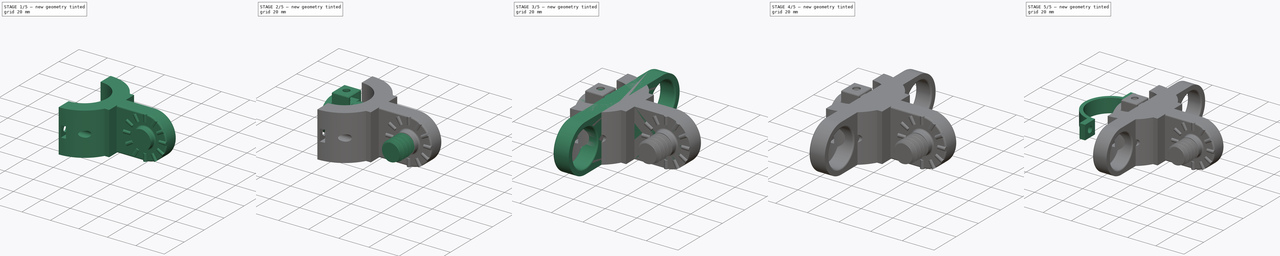
[diagram: build sequence overview — one tinted view per stage of 5, left to right]
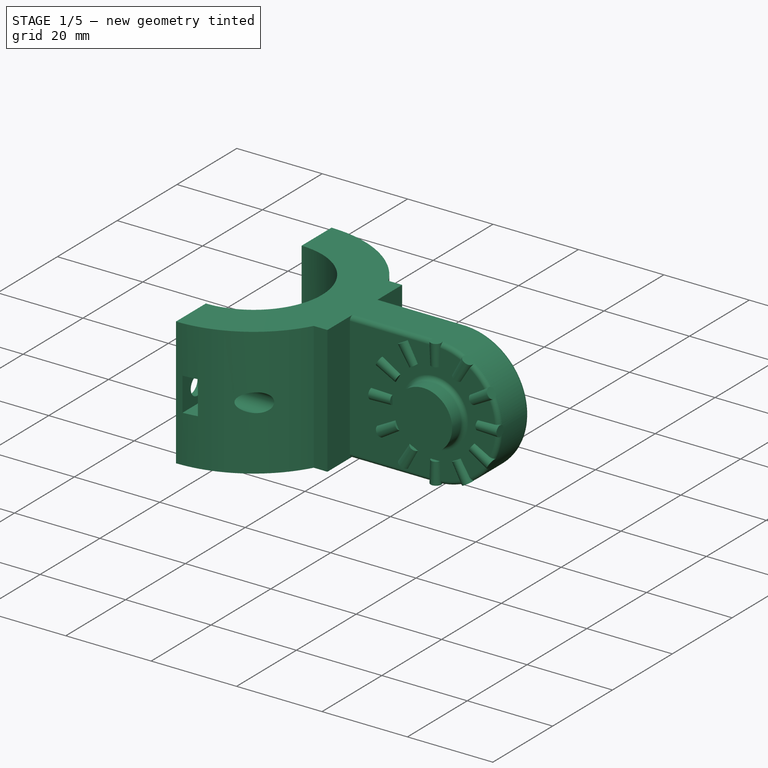
[diagram: stage 1 of 5 — iso view after this stage's code; geometry added in this stage tinted green]
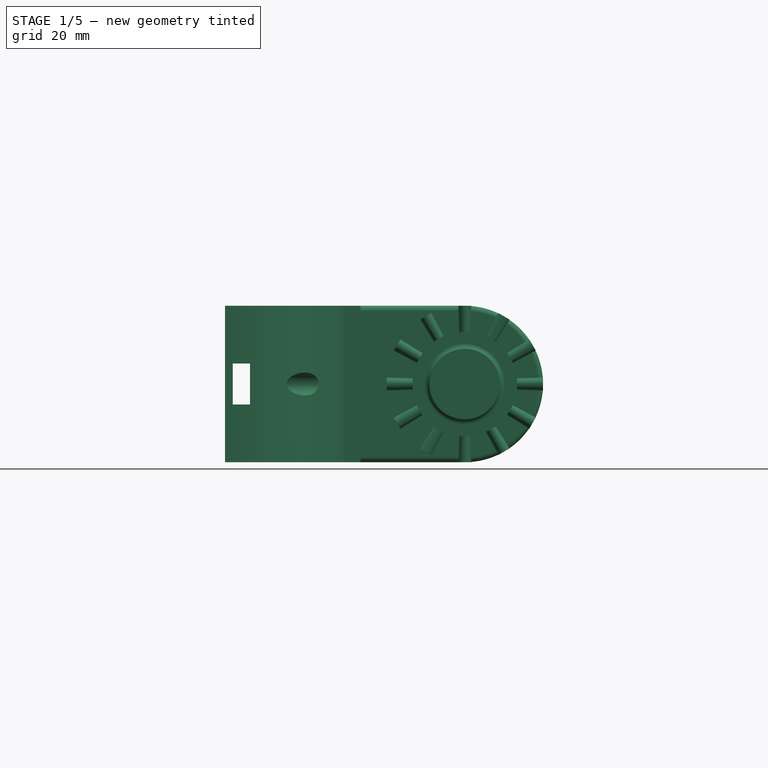
[diagram: stage 1 of 5 — front view after this stage's code; geometry added in this stage tinted green]
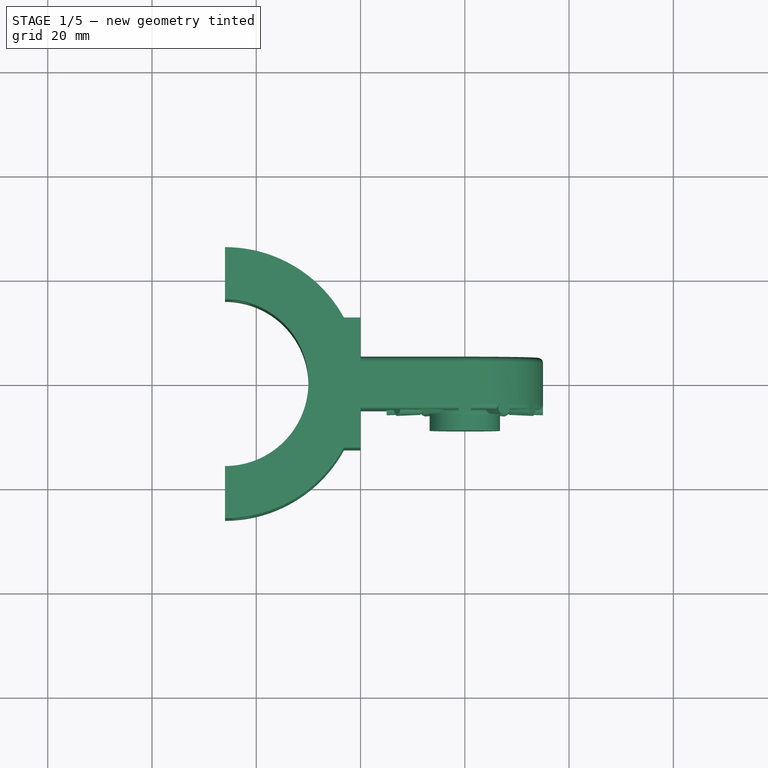
[diagram: stage 1 of 5 — top view after this stage's code; geometry added in this stage tinted green]
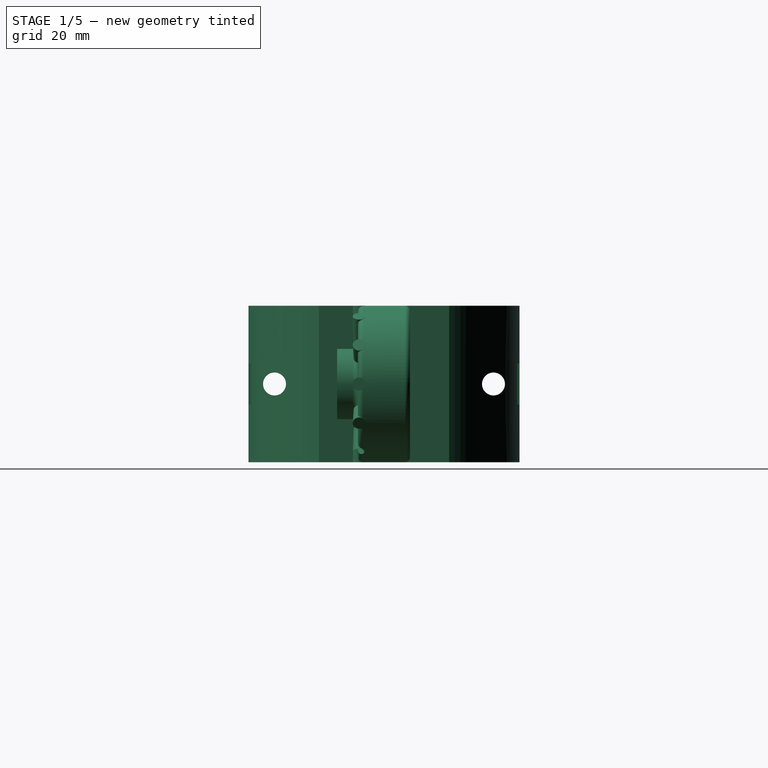
[diagram: stage 1 of 5 — right view after this stage's code; geometry added in this stage tinted green]
FCSTD DOCUMENT  (FreeCAD 0.18R16146 (Git))
Label: magic_arm_adapters
License: All rights reserved
LicenseURL: http://en.wikipedia.org/wiki/All_rights_reserved
objects: Sketcher::SketchObject×46, PartDesign::Pad×25, PartDesign::Fillet×16, PartDesign::Body×11, PartDesign::Pocket×11, PartDesign::PolarPattern×7, App::Part×7, PartDesign::Mirrored×5, PartDesign::Hole×4, PartDesign::Revolution×4, Part::MultiFuse×3, PartDesign::Boolean×2, PartDesign::Groove×2, Part::Part2DObjectPython×2, Part::Helix×2, Part::Sweep×2
note: 188 computed .brp shape members not serialized (recipe doc carries the construction recipe); baked Part::Feature solids carry a one-line shape summary decoded from their .brp

FEATURE [Sketcher::SketchObject] Sketch
  MapMode = 5
  Placement = pos=(0,0,0) rot=(1,0,0;1.5708rad)
  Support = -> [XZ_Plane]
  sketch-geometry (5):
    g0: ArcOfCircle CenterX=0 CenterY=0 CenterZ=0 NormalX=0 NormalY=0 NormalZ=1 AngleXU=0 Radius=15 StartAngle=4.71239 EndAngle=7.85398
    g1: LineSegment StartX=4.6e-15 StartY=15 StartZ=0 EndX=-20 EndY=15 EndZ=0
    g2: LineSegment StartX=-20 StartY=15 StartZ=0 EndX=-20 EndY=-15 EndZ=0
    g3: LineSegment StartX=-20 StartY=-15 StartZ=0 EndX=-5.2016e-05 EndY=-15 EndZ=0
    g4: Circle CenterX=0 CenterY=0 CenterZ=0 NormalX=0 NormalY=0 NormalZ=1 AngleXU=0 Radius=7.5
  constraints (14):
    c: Radius(g0) = 15
    c: Coincident(g1,g2)
    c: Coincident(g2,g3)
    c: Horizontal(g1)
    c: Horizontal(g3)
    c: Vertical(g2)
    c: Coincident(g0,g3)
    c: Coincident(g0,g1)
    c: DistanceX(g1,g1) = 20
    c: PointOnObject(g0,g-2)
    c: Coincident(g-1,g0)
    c: DistanceY(g2,g2) = 30
    c: Coincident(g4,g0)
    c: Radius(g4) = 7.5
FEATURE [PartDesign::Pad] Pad
  Length = 10
  Length2 = 100
  Midplane = true
  Placement = pos=(0,0,0) rot=(1,0,0;1.5708rad)
  Profile = -> Sketch
  Type = 0
FEATURE [Sketcher::SketchObject] Sketch001
  AttachmentOffset = pos=(0,0,-0.25) rot=(0,0,1;0rad)
  ExternalGeometry = -> [Pad]
  MapMode = 5
  Placement = pos=(0,-4.75,-1e-15) rot=(1,0,0;1.5708rad)
  Support = -> [Pad]
  expr: Constraints[6] = 2.2 / 2
  expr: Constraints[7] = 2.5 / 2
  sketch-geometry (4):
    g0: LineSegment StartX=10 StartY=1e-16 StartZ=0 EndX=10 EndY=-1.1 EndZ=0
    g1: LineSegment StartX=10 StartY=-1.1 StartZ=0 EndX=15 EndY=-1.25 EndZ=0
    g2: LineSegment StartX=15 StartY=-1.25 StartZ=0 EndX=15 EndY=0 EndZ=0
    g3: LineSegment StartX=15 StartY=0 StartZ=0 EndX=10 EndY=1e-16 EndZ=0
  constraints (12):
    c: Coincident(g0,g1)
    c: Coincident(g1,g2)
    c: Vertical(g2)
    c: Coincident(g2,g3)
    c: Coincident(g3,g0)
    c: Vertical(g0)
    c: DistanceY(g0,g0) = 1.1
    c: DistanceY(g2,g2) = 1.25
    c: DistanceX(g1,g1) = 5
    c: DistanceY(g0,g-1) = 1.1
    c: PointOnObject(g2,g-1)
    c: PointOnObject(g2,g-3)
FEATURE [Sketcher::SketchObject] Sketch002
  MapMode = 5
  Placement = pos=(-20,0,0) rot=(0.707107,0,-0.707107;3.14159rad)
  sketch-geometry (4):
    g0: LineSegment StartX=-15 StartY=-12.5 StartZ=0 EndX=15 EndY=-12.5 EndZ=0
    g1: LineSegment StartX=15 StartY=-12.5 StartZ=0 EndX=15 EndY=12.5 EndZ=0
    g2: LineSegment StartX=15 StartY=12.5 StartZ=0 EndX=-15 EndY=12.5 EndZ=0
    g3: LineSegment StartX=-15 StartY=12.5 StartZ=0 EndX=-15 EndY=-12.5 EndZ=0
  constraints (10):
    c: Coincident(g0,g1)
    c: Coincident(g1,g2)
    c: Coincident(g2,g3)
    c: Coincident(g3,g0)
    c: Horizontal(g0)
    c: Horizontal(g2)
    c: Vertical(g1)
    c: Vertical(g3)
    c: Symmetric(g2,g0,g-1)
    c: DistanceY(g3,g3) = 25
FEATURE [Sketcher::SketchObject] Sketch003
  MapMode = 5
  Support = -> [XY_Plane001]
  expr: Constraints[4] = 32 / 2 + 20 + 10
  sketch-geometry (4):
    g0: ArcOfCircle CenterX=-46 CenterY=0 CenterZ=0 NormalX=0 NormalY=0 NormalZ=1 AngleXU=0 Radius=16 StartAngle=4.71239 EndAngle=7.85398
    g1: ArcOfCircle CenterX=-46 CenterY=0 CenterZ=0 NormalX=0 NormalY=0 NormalZ=1 AngleXU=0 Radius=26 StartAngle=4.71239 EndAngle=7.85398
    g2: LineSegment StartX=-46 StartY=26 StartZ=0 EndX=-46 EndY=16 EndZ=0
    g3: LineSegment StartX=-46 StartY=-16 StartZ=0 EndX=-46 EndY=-26 EndZ=0
  constraints (12):
    c: PointOnObject(g0,g-1)
    c: Diameter(g0) = 32
    c: Diameter(g1) = 52
    c: Coincident(g0,g1)
    c: DistanceX(g0,g-1) = 46
    c: Coincident(g2,g1)
    c: Coincident(g2,g0)
    c: Coincident(g3,g0)
    c: Coincident(g3,g1)
    c: Vertical(g3)
    c: Vertical(g0,g0)
    c: Vertical(g1,g0)
FEATURE [PartDesign::Pad] Pad002
  Length = 30
  Length2 = 100
  Midplane = true
  Profile = -> Sketch003
  Type = 0
FEATURE [Sketcher::SketchObject] Sketch004
  ExternalGeometry = -> [Pad002]
  MapMode = 5
  Placement = pos=(-46,0,0) rot=(0.57735,-0.57735,-0.57735;2.0944rad)
  Support = -> [Pad002]
  expr: Constraints[2] = 52 / 2 - 10 / 2
  sketch-geometry (2):
    g0: Circle CenterX=-21 CenterY=0 CenterZ=0 NormalX=0 NormalY=0 NormalZ=1 AngleXU=0 Radius=2
    g1: Circle CenterX=21 CenterY=0 CenterZ=0 NormalX=0 NormalY=0 NormalZ=1 AngleXU=0 Radius=2
  constraints (5):
    c: PointOnObject(g1,g-1)
    c: Symmetric(g0,g1,g-1)
    c: DistanceX(g-1,g1) = 21
    c: Equal(g0,g1)
    c: Diameter(g1) = 4
FEATURE [PartDesign::Hole] Hole
  BaseFeature = -> Pad002
  Depth = 25
  DepthType = 1
  Diameter = 4.4
  DrillPoint = 1
  DrillPointAngle = 118
  HoleCutCountersinkAngle = 90
  HoleCutDepth = 0
  HoleCutDiameter = 4
  HoleCutType = 0
  ModelActualThread = false
  Profile = -> Sketch004
  Tapered = false
  TaperedAngle = 90
  ThreadAngle = 0
  ThreadClass = 0
  ThreadCutOffInner = 0
  ThreadCutOffOuter = 0
  ThreadDirection = 0
  ThreadFit = 0
  ThreadPitch = 0
  ThreadSize = 11
  ThreadType = 2
  Threaded = false
FEATURE [PartDesign::Fillet] Fillet
  Base = -> Pad [Edge4,Edge15,Edge3,Edge14]
  BaseFeature = -> Pad
  Placement = pos=(0,0,0) rot=(1,0,0;1.5708rad)
  Radius = 1
FEATURE [PartDesign::Revolution] Revolution
  Angle = 360
  Axis = (1,0,0)
  Base = (0,-4.75,-1.1e-15)
  BaseFeature = -> Fillet
  Placement = pos=(0,0,0) rot=(1,0,0;1.5708rad)
  Profile = -> Sketch001
  ReferenceAxis = -> Sketch001 [H_Axis]
  Reversed = true
FEATURE [PartDesign::PolarPattern] PolarPattern
  Angle = 360
  Axis = -> Sketch001 [N_Axis]
  BaseFeature = -> Revolution
  Occurrences = 12
  Originals = -> [Revolution]
  Placement = pos=(0,0,0) rot=(1,0,0;1.5708rad)
FEATURE [PartDesign::Pad] Pad003
  BaseFeature = -> PolarPattern
  Length = 10
  Length2 = 100
  Placement = pos=(0,0,0) rot=(1,0,0;1.5708rad)
  Profile = -> Sketch002
  Type = 0
FEATURE [PartDesign::Body] Body
  Group = -> [Sketch,Pad,Fillet,Sketch001,Revolution,PolarPattern,Sketch002,Pad003]
  Origin = -> Origin
  Tip = -> Pad003
FEATURE [Sketcher::SketchObject] Sketch005
  ExternalGeometry = -> [Hole]
  MapMode = 5
  Placement = pos=(0,0,0) rot=(1,0,0;1.5708rad)
  Support = -> [XZ_Plane001]
  sketch-geometry (4):
    g0: LineSegment StartX=-44.5 StartY=3.925 StartZ=0 EndX=-41.2 EndY=3.925 EndZ=0
    g1: LineSegment StartX=-41.2 StartY=3.925 StartZ=0 EndX=-41.2 EndY=-3.925 EndZ=0
    g2: LineSegment StartX=-41.2 StartY=-3.925 StartZ=0 EndX=-44.5 EndY=-3.925 EndZ=0
    g3: LineSegment StartX=-44.5 StartY=-3.925 StartZ=0 EndX=-44.5 EndY=3.925 EndZ=0
  constraints (11):
    c: Coincident(g0,g1)
    c: Coincident(g1,g2)
    c: Coincident(g2,g3)
    c: Coincident(g3,g0)
    c: Horizontal(g0)
    c: Symmetric(g0,g2,g-1)
    c: Equal(g3,g1)
    c: Equal(g2,g0)
    c: DistanceY(g1,g1) = 7.85
    c: DistanceX(g2,g2) = 3.3
    c: DistanceX(g-3,g2) = 1.5
FEATURE [PartDesign::Pocket] Pocket
  BaseFeature = -> Hole
  Length = 5
  Length2 = 100
  Profile = -> Sketch005
  Type = 1
FEATURE [PartDesign::Mirrored] Mirrored
  BaseFeature = -> Pocket
  MirrorPlane = -> XZ_Plane001
  Originals = -> [Pocket]
FEATURE [PartDesign::Body] Body005
  Group = -> [Sketch017,Pad010,Fillet004,Sketch018,Pocket003,Sketch019,Pocket004,PolarPattern002]
  Origin = -> Origin008
  Tip = -> PolarPattern002
FEATURE [App::Part] Part002  label="Palomilla"
  Group = -> [Body005]
  Origin = -> Origin007
  Placement = pos=(40,-30,0) rot=(0,0,1;0rad)
FEATURE [Sketcher::SketchObject] Sketch020
  MapMode = 5
  Placement = pos=(0,0,0) rot=(1,0,0;1.5708rad)
  Support = -> [XZ_Plane011]
  sketch-geometry (4):
    g0: ArcOfCircle CenterX=0 CenterY=0 CenterZ=0 NormalX=0 NormalY=0 NormalZ=1 AngleXU=0 Radius=15 StartAngle=4.71239 EndAngle=7.85398
    g1: LineSegment StartX=4.6e-15 StartY=15 StartZ=0 EndX=-20 EndY=15 EndZ=0
    g2: LineSegment StartX=-20 StartY=15 StartZ=0 EndX=-20 EndY=-15 EndZ=0
    g3: LineSegment StartX=-20 StartY=-15 StartZ=0 EndX=-5.2016e-05 EndY=-15 EndZ=0
  constraints (12):
    c: Radius(g0) = 15
    c: Coincident(g1,g2)
    c: Coincident(g2,g3)
    c: Horizontal(g1)
    c: Horizontal(g3)
    c: Vertical(g2)
    c: Coincident(g0,g3)
    c: Coincident(g0,g1)
    c: DistanceX(g1,g1) = 20
    c: PointOnObject(g0,g-2)
    c: Coincident(g-1,g0)
    c: DistanceY(g2,g2) = 30
FEATURE [PartDesign::Pad] Pad011
  Length = 10
  Length2 = 100
  Midplane = true
  Placement = pos=(0,0,0) rot=(1,0,0;1.5708rad)
  Profile = -> Sketch020
  Type = 0
FEATURE [Sketcher::SketchObject] Sketch021
  ExternalGeometry = -> [Pad011]
  MapMode = 5
  Placement = pos=(0,-5,-1.1e-15) rot=(1,0,0;1.5708rad)
  Support = -> [Pad011]
  expr: Constraints[6] = 2.2 / 2
  expr: Constraints[7] = 2.5 / 2
  sketch-geometry (4):
    g0: LineSegment StartX=10 StartY=1e-16 StartZ=0 EndX=10 EndY=-1.1 EndZ=0
    g1: LineSegment StartX=10 StartY=-1.1 StartZ=0 EndX=15 EndY=-1.25 EndZ=0
    g2: LineSegment StartX=15 StartY=-1.25 StartZ=0 EndX=15 EndY=0 EndZ=0
    g3: LineSegment StartX=15 StartY=0 StartZ=0 EndX=10 EndY=1e-16 EndZ=0
  constraints (12):
    c: Coincident(g0,g1)
    c: Coincident(g1,g2)
    c: Vertical(g2)
    c: Coincident(g2,g3)
    c: Coincident(g3,g0)
    c: Vertical(g0)
    c: DistanceY(g0,g0) = 1.1
    c: DistanceY(g2,g2) = 1.25
    c: DistanceX(g1,g1) = 5
    c: DistanceY(g0,g-1) = 1.1
    c: PointOnObject(g2,g-1)
    c: PointOnObject(g2,g-3)
FEATURE [PartDesign::Fillet] Fillet005
  Base = -> Pad011 [Edge4,Edge3]
  BaseFeature = -> Pad011
  Placement = pos=(0,0,0) rot=(1,0,0;1.5708rad)
  Radius = 1
FEATURE [PartDesign::Groove] Groove
  Angle = 360
  Axis = (1,0,0)
  Base = (0,-5,-1.1e-15)
  BaseFeature = -> Fillet005
  Placement = pos=(0,0,0) rot=(1,0,0;1.5708rad)
  Profile = -> Sketch021
  ReferenceAxis = -> Sketch021 [H_Axis]
FEATURE [PartDesign::PolarPattern] PolarPattern003
  Angle = 360
  Axis = -> Sketch021 [N_Axis]
  BaseFeature = -> Groove
  Occurrences = 12
  Originals = -> [Groove]
  Placement = pos=(0,0,0) rot=(1,0,0;1.5708rad)
FEATURE [Sketcher::SketchObject] Sketch028
  MapMode = 5
  Placement = pos=(0,-5,-1.1e-15) rot=(1,0,0;1.5708rad)
  Support = -> [PolarPattern003]
  sketch-geometry (1):
    g0: Circle CenterX=0 CenterY=0 CenterZ=0 NormalX=0 NormalY=0 NormalZ=1 AngleXU=0 Radius=6.75
  constraints (2):
    c: Coincident(g-1,g0)
    c: Diameter(g0) = 13.5
FEATURE [PartDesign::Pad] Pad015
  BaseFeature = -> PolarPattern003
  Length = 4
  Length2 = 100
  Placement = pos=(0,0,0) rot=(1,0,0;1.5708rad)
  Profile = -> Sketch028
  Type = 0
FEATURE [PartDesign::Fillet] Fillet008
  Base = -> Pad015 [Edge111]
  BaseFeature = -> Pad015
  Placement = pos=(0,0,0) rot=(1,0,0;1.5708rad)
  Radius = 1
FEATURE [App::Part] Part003  label="Adaptador Macho"
  Group = -> [Body006,Helix,VThreadProfile,Sweep,Fusion001]
  Origin = -> Origin012
  Placement = pos=(75,50,0) rot=(-1,0,0;1.5708rad)
FEATURE [Part::MultiFuse] Fusion002
  Shapes = -> [Body,Body001]
FEATURE [App::Part] Part  label="Pinza 1"
  Group = -> [Body,Body001,Fusion002]
  Origin = -> Origin003
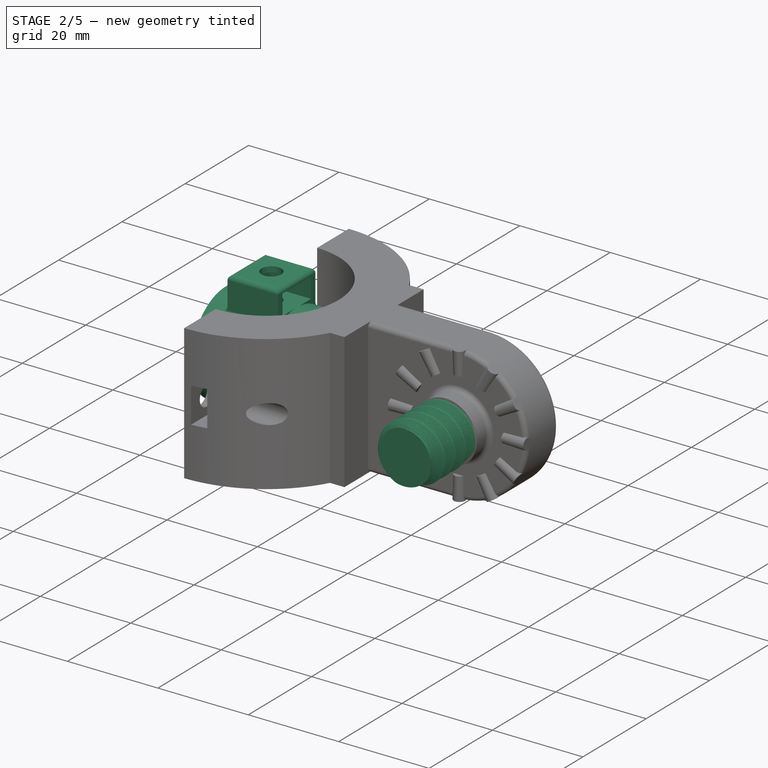
[diagram: stage 2 of 5 — iso view after this stage's code; geometry added in this stage tinted green]
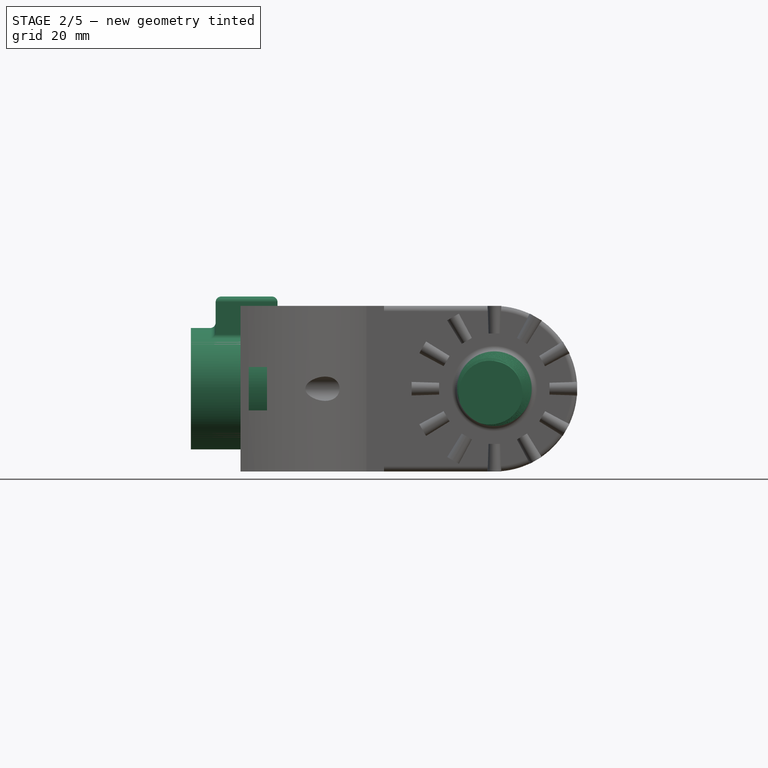
[diagram: stage 2 of 5 — front view after this stage's code; geometry added in this stage tinted green]
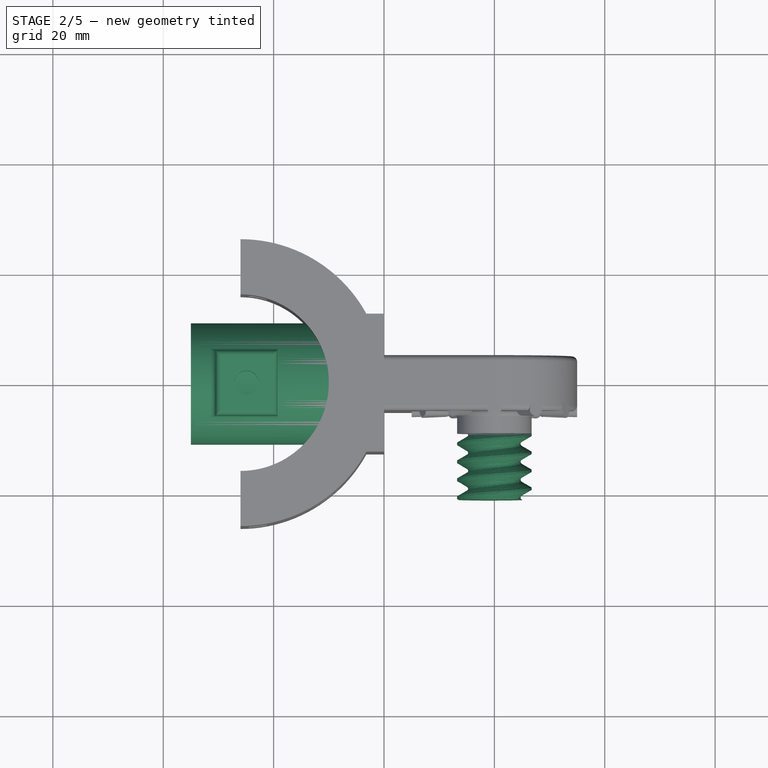
[diagram: stage 2 of 5 — top view after this stage's code; geometry added in this stage tinted green]
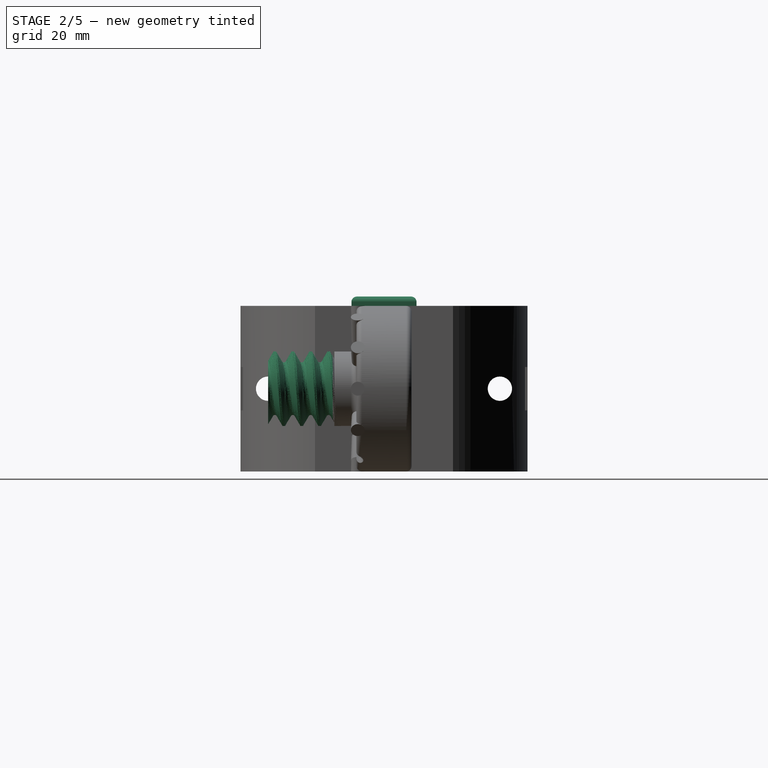
[diagram: stage 2 of 5 — right view after this stage's code; geometry added in this stage tinted green]
FEATURE [Part::Part2DObjectPython] VThreadProfile  # Draft 2D object (typed FeaturePython)
  Area = 104.591
  Closed = true
  Continuity = C2
  Instructions = Expand this with the ... button to view instructions | Sweep this object along a helix of the same pitch to produce your thread. | It is recommended to make the helix in the ThreadProfile workbench. | If there is an active Body the ThreadProfile object will be put into it.,If not it can be dragged and dropped into the body later. | If there is an active Body when the helix is made there will be made a ShapeBinder for it | For internal threads you will need to cut the Sweep object out of a cylinder, or if using Part Design sweep it as a Subtractive Pipe. | Always use Frenet mode | I have provided some presets, but it is possible there could be some errors.  Double check for mission critical applications. | Also, the tolerances might be different from what you wish to have.  I believe the internal minor diameters are all minimum and the external are all maximum.
  InternalOrExternal = 1
  MakeFace = true
  MinorDiameter = 10
  Parameterization = 1
  Pitch = 3.25
  Points = (719) [(4.99216,0.0436265,0),(4.98425,0.0871215,0),(4.97626,0.130489,0),(4.96815,0.173733,0),(4.95992,0.216856,0),(4.95154,0.259861,0),(4.943,0.302748,0),+712 more]
  Presets = 0
  Quality = 1
  ThreadCount = 4
  Version = 1.51
  external_data = [-0.00235387,-0.00461052,-0.00677828,-0.00886428,-0.0108747,-0.0128149,-0.0146895,-0.0165028,-0.0182584,-0.0199597,-0.0216095,-0.0232106,-0.0247653,-0.0262759,-0.0277444,-0.0291725,-0.0305621,-0.0319145,-0.0332313,-0.0345138,-0.0357632,+698 more]
  internal_data = [0,0,0,0,0,0,0,0,0,0,0,0,0,0,0,0,0,0,0,0,0,0,0,0,0,0,0,0,0,0,0,0,0,0,0,0,0,0,0,0,0,0,0,0,0,0,0,0,0,0,0,0,0,0,0,0,0,0,0,0,0,0,0,0,0,0,0,0,0,0,0,0,0,0,0,0,0,0,0,0,0,0,0,0,0,0,0,0,0,0,0,0,0,0,0,0,0,0,0,0,0,0,0,0,0,0,0,0,0,0,0,0,0,0,0,0,0,0,0,0,+599 more]
  preset_names = <blob: 3959 chars omitted>
  presets_data = [0,0,0,2.20878,24.1173,24.6888,0.25,0.693,0.729,0.25,0.793,0.829,0.25,0.893,0.929,0.3,1.032,1.075,0.35,1.171,1.221,0.35,1.371,1.421,0.4,1.509,1.567,0.45,1.648,1.713,0.45,1.948,2.013,0.5,2.387,2.459,0.6,2.764,2.85,0.7,3.141,3.242,0.75,3.58,+712 more]
FEATURE [Part::Helix] Helix
  Angle = 0
  AttacherType = Attacher::AttachEngine3D
  Height = 13
  LocalCoord = 0
  Pitch = 3.25
  Radius = 12
  Style = 0
  expr: Pitch = VThreadProfile.Pitch
  expr: Height = VThreadProfile.ThreadCount * VThreadProfile.Pitch
FEATURE [Part::Sweep] Sweep
  Frenet = true
  Placement = pos=(0,-8,0) rot=(1,0,0;1.5708rad)
  Sections = -> [VThreadProfile]
  Solid = true
  Spine = -> Helix [Edge1,Edge2,Edge3,Edge4]
  Transition = 1
FEATURE [Sketcher::SketchObject] Sketch029
  MapMode = 5
  Placement = pos=(-20,0,0) rot=(0.707107,0,-0.707107;3.14159rad)
  Support = -> [Fillet008]
  sketch-geometry (1):
    g0: Circle CenterX=0 CenterY=0 CenterZ=0 NormalX=0 NormalY=0 NormalZ=1 AngleXU=0 Radius=11
  constraints (2):
    c: Coincident(g0,g-1)
    c: Radius(g0) = 11
FEATURE [PartDesign::Pad] Pad016
  BaseFeature = -> Fillet008
  Length = 35
  Length2 = 100
  Placement = pos=(0,0,0) rot=(1,0,0;1.5708rad)
  Profile = -> Sketch029
  Type = 0
FEATURE [Sketcher::SketchObject] Sketch030
  MapMode = 5
  Support = -> [XY_Plane012]
  expr: Constraints[10] = 35 + 20 - 4.5
  sketch-geometry (4):
    g0: LineSegment StartX=-50.5 StartY=5.9 StartZ=0 EndX=-39.3 EndY=5.9 EndZ=0
    g1: LineSegment StartX=-39.3 StartY=5.9 StartZ=0 EndX=-39.3 EndY=-5.9 EndZ=0
    g2: LineSegment StartX=-39.3 StartY=-5.9 StartZ=0 EndX=-50.5 EndY=-5.9 EndZ=0
    g3: LineSegment StartX=-50.5 StartY=-5.9 StartZ=0 EndX=-50.5 EndY=5.9 EndZ=0
  constraints (11):
    c: Coincident(g0,g1)
    c: Coincident(g1,g2)
    c: Coincident(g2,g3)
    c: Coincident(g3,g0)
    c: Horizontal(g0)
    c: Horizontal(g2)
    c: Vertical(g1)
    c: DistanceX(g0,g0) = 11.2
    c: DistanceY(g1,g1) = 11.8
    c: Symmetric(g0,g2,g-1)
    c: DistanceX(g0,g-1) = 50.5
FEATURE [PartDesign::Pad] Pad017
  BaseFeature = -> Pad016
  Length = 16.7
  Length2 = 100
  Placement = pos=(0,0,0) rot=(1,0,0;1.5708rad)
  Profile = -> Sketch030
  Type = 0
FEATURE [Sketcher::SketchObject] Sketch031
  ExternalGeometry = -> [Pad017]
  MapMode = 5
  Placement = pos=(-39.3,0,0) rot=(0.707107,0,0.707107;3.14159rad)
  Support = -> [Pad017]
  sketch-geometry (4):
    g0: LineSegment StartX=11 StartY=4.5 StartZ=0 EndX=15.5 EndY=4.5 EndZ=0
    g1: LineSegment StartX=15.5 StartY=4.5 StartZ=0 EndX=15.5 EndY=-4.5 EndZ=0
    g2: LineSegment StartX=15.5 StartY=-4.5 StartZ=0 EndX=11 EndY=-4.5 EndZ=0
    g3: LineSegment StartX=11 StartY=-4.5 StartZ=0 EndX=11 EndY=4.5 EndZ=0
  constraints (11):
    c: Coincident(g0,g1)
    c: Coincident(g1,g2)
    c: Coincident(g2,g3)
    c: Coincident(g3,g0)
    c: Horizontal(g0)
    c: Horizontal(g2)
    c: Vertical(g3)
    c: DistanceX(g0,g0) = 4.5
    c: DistanceX(g1,g-4) = 1.2
    c: DistanceY(g3,g3) = 9
    c: Symmetric(g0,g1,g-1)
FEATURE [PartDesign::Pocket] Pocket005
  BaseFeature = -> Pad017
  Length = 9
  Length2 = 100
  Placement = pos=(0,0,0) rot=(1,0,0;1.5708rad)
  Profile = -> Sketch031
  Type = 0
FEATURE [Sketcher::SketchObject] Sketch032
  ExternalGeometry = -> [Pocket005]
  MapMode = 5
  Placement = pos=(0,0,16.7) rot=(0,0,1;3.14159rad)
  Support = -> [Pocket005]
  sketch-geometry (1):
    g0: Circle CenterX=44.9 CenterY=2.7e-15 CenterZ=0 NormalX=0 NormalY=0 NormalZ=1 AngleXU=0 Radius=3
  constraints (2):
    c: Symmetric(g-3,g-4,g0)
    c: Radius(g0) = 3
FEATURE [PartDesign::Hole] Hole003
  BaseFeature = -> Pocket005
  Depth = 25
  DepthType = 0
  Diameter = 4.4
  DrillPoint = 1
  DrillPointAngle = 118
  HoleCutCountersinkAngle = 90
  HoleCutDepth = 0
  HoleCutDiameter = 4
  HoleCutType = 0
  ModelActualThread = false
  Placement = pos=(0,0,0) rot=(1,0,0;1.5708rad)
  Profile = -> Sketch032
  Tapered = false
  TaperedAngle = 90
  ThreadAngle = 0
  ThreadClass = 0
  ThreadCutOffInner = 0
  ThreadCutOffOuter = 0
  ThreadDirection = 0
  ThreadFit = 0
  ThreadPitch = 0
  ThreadSize = 11
  ThreadType = 2
  Threaded = false
FEATURE [Sketcher::SketchObject] Sketch033
  MapMode = 5
  Placement = pos=(-55,0,-1.21e-14) rot=(0.707107,0,-0.707107;3.14159rad)
  Support = -> [Hole003]
  expr: Constraints[1] = 17 / 2
  sketch-geometry (1):
    g0: Circle CenterX=0 CenterY=0 CenterZ=0 NormalX=0 NormalY=0 NormalZ=1 AngleXU=0 Radius=8.5
  constraints (2):
    c: Coincident(g0,g-1)
    c: Radius(g0) = 8.5
FEATURE [PartDesign::Pocket] Pocket006
  BaseFeature = -> Hole003
  Length = 33
  Length2 = 100
  Placement = pos=(0,0,0) rot=(1,0,0;1.5708rad)
  Profile = -> Sketch033
  Type = 0
FEATURE [Sketcher::SketchObject] Sketch034
  ExternalGeometry = -> [Pocket006]
  MapMode = 5
  Placement = pos=(0,0,0) rot=(1,0,0;1.5708rad)
  Support = -> [XZ_Plane011]
  sketch-geometry (3):
    g0: LineSegment StartX=-20 StartY=-14 StartZ=0 EndX=-20 EndY=-10 EndZ=0
    g1: LineSegment StartX=-20 StartY=-10 StartZ=0 EndX=-27 EndY=-10 EndZ=0
    g2: ArcOfCircle CenterX=-30.9641 CenterY=-25.0622 CenterZ=0 NormalX=0 NormalY=0 NormalZ=1 AngleXU=0 Radius=15.5751 StartAngle=0.789851 EndAngle=1.31345
  constraints (9):
    c: DistanceY(g0,g0) = 4
    c: DistanceX(g1,g1) = 7
    c: Coincident(g2,g-3)
    c: Coincident(g2,g0)
    c: Coincident(g1,g0)
    c: Perpendicular(g1,g0)
    c: Vertical(g0)
    c: Coincident(g1,g2)
    c: Angle(g2) = 0.523599
FEATURE [PartDesign::Pad] Pad018
  BaseFeature = -> Pocket006
  Length = 10
  Length2 = 100
  Midplane = true
  Placement = pos=(0,0,0) rot=(1,0,0;1.5708rad)
  Profile = -> Sketch034
  Type = 0
FEATURE [PartDesign::Mirrored] Mirrored002
  BaseFeature = -> Pad018
  MirrorPlane = -> Sketch034 [H_Axis]
  Originals = -> [Pad018]
  Placement = pos=(0,0,0) rot=(1,0,0;1.5708rad)
FEATURE [PartDesign::Fillet] Fillet009
  Base = -> Mirrored002 [Edge149,Edge147,Edge146,Edge174,Edge172,Edge177,Edge183]
  BaseFeature = -> Mirrored002
  Placement = pos=(0,0,0) rot=(1,0,0;1.5708rad)
  Radius = 1
FEATURE [PartDesign::Body] Body006
  Group = -> [Sketch020,Pad011,Fillet005,Sketch021,Groove,PolarPattern003,Sketch028,Pad015,Fillet008,Sketch029,Pad016,Sketch030,Pad017,Sketch031,Pocket005,Sketch032,Hole003,Sketch033,Pocket006,Sketch034,Pad018,Mirrored002,Fillet009]
  Origin = -> Origin011
  Tip = -> Fillet009
FEATURE [Sketcher::SketchObject] Sketch035
  MapMode = 5
  Placement = pos=(0,0,0) rot=(1,0,0;1.5708rad)
  Support = -> [XZ_Plane013]
  sketch-geometry (4):
    g0: ArcOfCircle CenterX=0 CenterY=0 CenterZ=0 NormalX=0 NormalY=0 NormalZ=1 AngleXU=0 Radius=15 StartAngle=4.71239 EndAngle=7.85398
    g1: LineSegment StartX=4.6e-15 StartY=15 StartZ=0 EndX=-20 EndY=15 EndZ=0
    g2: LineSegment StartX=-20 StartY=15 StartZ=0 EndX=-20 EndY=-15 EndZ=0
    g3: LineSegment StartX=-20 StartY=-15 StartZ=0 EndX=-5.2016e-05 EndY=-15 EndZ=0
  constraints (12):
    c: Radius(g0) = 15
    c: Coincident(g1,g2)
    c: Coincident(g2,g3)
    c: Horizontal(g1)
    c: Horizontal(g3)
    c: Vertical(g2)
    c: Coincident(g0,g3)
    c: Coincident(g0,g1)
    c: DistanceX(g1,g1) = 20
    c: PointOnObject(g0,g-2)
    c: Coincident(g-1,g0)
    c: DistanceY(g2,g2) = 30
FEATURE [PartDesign::Pad] Pad019
  Length = 10
  Length2 = 100
  Midplane = true
  Placement = pos=(0,0,0) rot=(1,0,0;1.5708rad)
  Profile = -> Sketch035
  Type = 0
FEATURE [Sketcher::SketchObject] Sketch036
  ExternalGeometry = -> [Pad019]
  MapMode = 5
  Placement = pos=(0,-5,-1.1e-15) rot=(1,0,0;1.5708rad)
  Support = -> [Pad019]
  expr: Constraints[7] = 2.5 / 2
  expr: Constraints[6] = 2.2 / 2
  sketch-geometry (4):
    g0: LineSegment StartX=10 StartY=1e-16 StartZ=0 EndX=10 EndY=-1.1 EndZ=0
    g1: LineSegment StartX=10 StartY=-1.1 StartZ=0 EndX=15 EndY=-1.25 EndZ=0
    g2: LineSegment StartX=15 StartY=-1.25 StartZ=0 EndX=15 EndY=0 EndZ=0
    g3: LineSegment StartX=15 StartY=0 StartZ=0 EndX=10 EndY=1e-16 EndZ=0
  constraints (12):
    c: Coincident(g0,g1)
    c: Coincident(g1,g2)
    c: Vertical(g2)
    c: Coincident(g2,g3)
    c: Coincident(g3,g0)
    c: Vertical(g0)
    c: DistanceY(g0,g0) = 1.1
    c: DistanceY(g2,g2) = 1.25
    c: DistanceX(g1,g1) = 5
    c: DistanceY(g0,g-1) = 1.1
    c: PointOnObject(g2,g-1)
    c: PointOnObject(g2,g-3)
FEATURE [PartDesign::Fillet] Fillet010
  Base = -> Pad019 [Edge4,Edge3]
  BaseFeature = -> Pad019
  Placement = pos=(0,0,0) rot=(1,0,0;1.5708rad)
  Radius = 1
FEATURE [PartDesign::Groove] Groove001
  Angle = 360
  Axis = (1,0,0)
  Base = (0,-5,-1.1e-15)
  BaseFeature = -> Fillet010
  Placement = pos=(0,0,0) rot=(1,0,0;1.5708rad)
  Profile = -> Sketch036
  ReferenceAxis = -> Sketch036 [H_Axis]
FEATURE [PartDesign::PolarPattern] PolarPattern004
  Angle = 360
  Axis = -> Sketch036 [N_Axis]
  BaseFeature = -> Groove001
  Occurrences = 12
  Originals = -> [Groove001]
  Placement = pos=(0,0,0) rot=(1,0,0;1.5708rad)
FEATURE [Sketcher::SketchObject] Sketch037
  MapMode = 5
  Placement = pos=(0,-5,-1.1e-15) rot=(1,0,0;1.5708rad)
  Support = -> [PolarPattern004]
  sketch-geometry (1):
    g0: Circle CenterX=0 CenterY=0 CenterZ=0 NormalX=0 NormalY=0 NormalZ=1 AngleXU=0 Radius=6.75
  constraints (2):
    c: Coincident(g-1,g0)
    c: Diameter(g0) = 13.5
FEATURE [PartDesign::Pad] Pad020
  BaseFeature = -> PolarPattern004
  Length = 4
  Length2 = 100
  Placement = pos=(0,0,0) rot=(1,0,0;1.5708rad)
  Profile = -> Sketch037
  Type = 0
FEATURE [PartDesign::Fillet] Fillet011
  Base = -> Pad020 [Edge111]
  BaseFeature = -> Pad020
  Placement = pos=(0,0,0) rot=(1,0,0;1.5708rad)
  Radius = 1
FEATURE [App::Part] Part004  label="Adaptador Macho inserto"
  Group = -> [Body007,Helix001,VThreadProfile001,Sweep001,Fusion]
  Origin = -> Origin014
  Placement = pos=(75,100,0) rot=(-1,0,0;1.5708rad)
FEATURE [Part::MultiFuse] Fusion001
  Shapes = -> [Body006,Sweep]
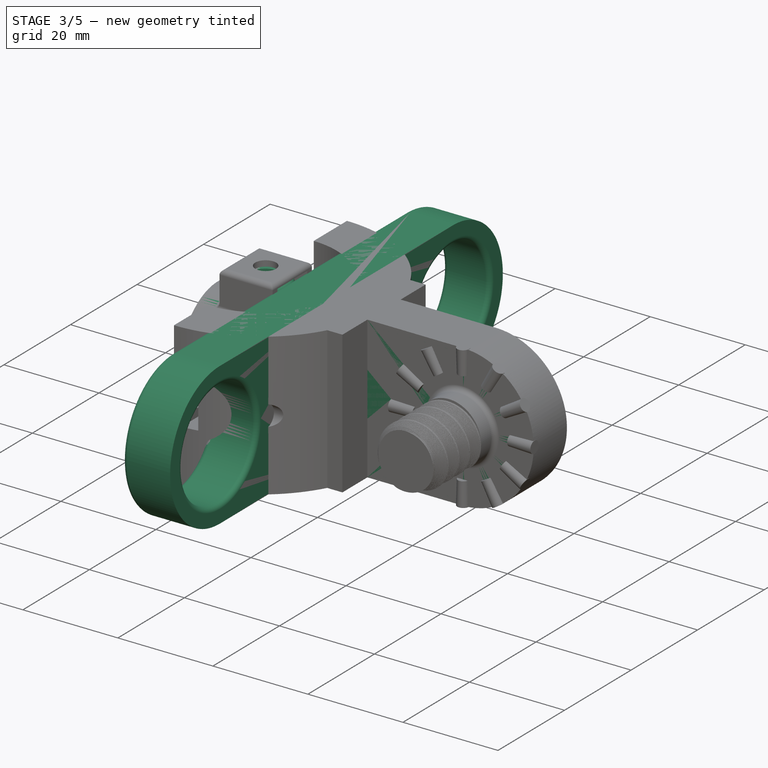
[diagram: stage 3 of 5 — iso view after this stage's code; geometry added in this stage tinted green]
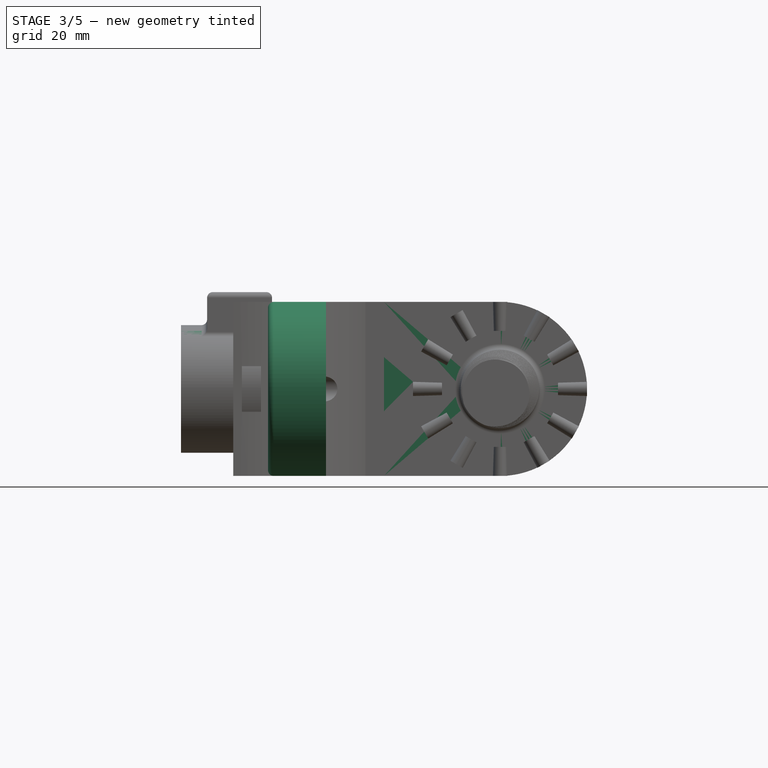
[diagram: stage 3 of 5 — front view after this stage's code; geometry added in this stage tinted green]
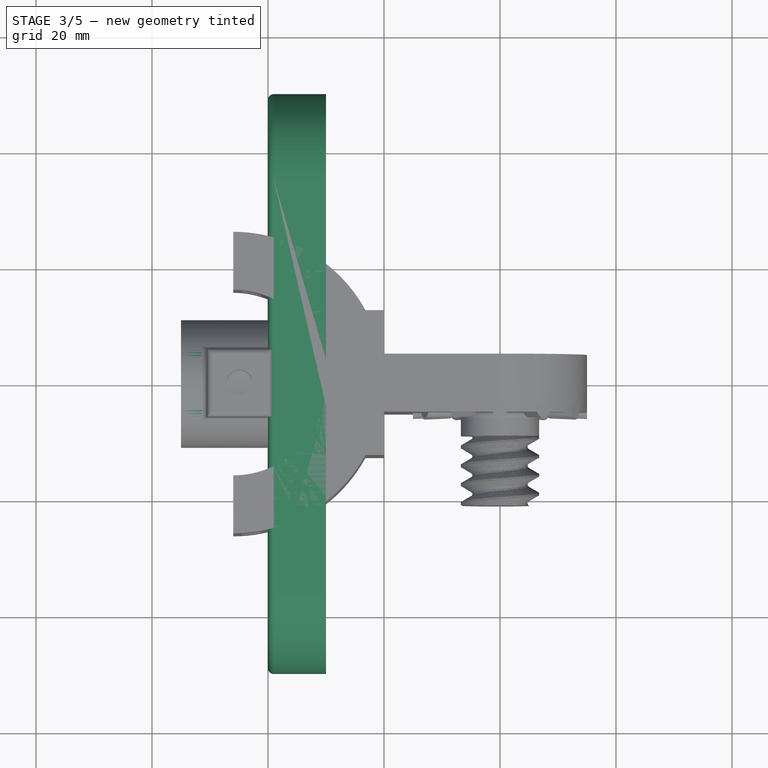
[diagram: stage 3 of 5 — top view after this stage's code; geometry added in this stage tinted green]
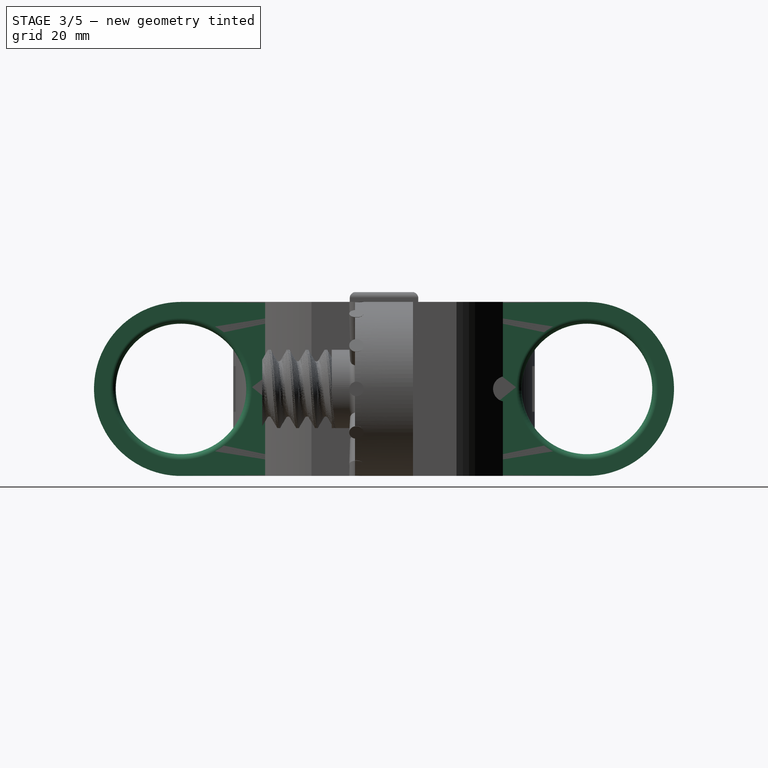
[diagram: stage 3 of 5 — right view after this stage's code; geometry added in this stage tinted green]
FEATURE [Part::Part2DObjectPython] VThreadProfile001  # Draft 2D object (typed FeaturePython)
  Area = 104.591
  Closed = true
  Continuity = C2
  Instructions = Expand this with the ... button to view instructions | Sweep this object along a helix of the same pitch to produce your thread. | It is recommended to make the helix in the ThreadProfile workbench. | If there is an active Body the ThreadProfile object will be put into it.,If not it can be dragged and dropped into the body later. | If there is an active Body when the helix is made there will be made a ShapeBinder for it | For internal threads you will need to cut the Sweep object out of a cylinder, or if using Part Design sweep it as a Subtractive Pipe. | Always use Frenet mode | I have provided some presets, but it is possible there could be some errors.  Double check for mission critical applications. | Also, the tolerances might be different from what you wish to have.  I believe the internal minor diameters are all minimum and the external are all maximum.
  InternalOrExternal = 1
  MakeFace = true
  MinorDiameter = 10
  Parameterization = 1
  Pitch = 3.25
  Points = (719) [(4.99216,0.0436265,0),(4.98425,0.0871215,0),(4.97626,0.130489,0),(4.96815,0.173733,0),(4.95992,0.216856,0),(4.95154,0.259861,0),(4.943,0.302748,0),+712 more]
  Presets = 0
  Quality = 1
  ThreadCount = 4
  Version = 1.51
  external_data = [-0.00235387,-0.00461052,-0.00677828,-0.00886428,-0.0108747,-0.0128149,-0.0146895,-0.0165028,-0.0182584,-0.0199597,-0.0216095,-0.0232106,-0.0247653,-0.0262759,-0.0277444,-0.0291725,-0.0305621,-0.0319145,-0.0332313,-0.0345138,-0.0357632,+698 more]
  internal_data = [0,0,0,0,0,0,0,0,0,0,0,0,0,0,0,0,0,0,0,0,0,0,0,0,0,0,0,0,0,0,0,0,0,0,0,0,0,0,0,0,0,0,0,0,0,0,0,0,0,0,0,0,0,0,0,0,0,0,0,0,0,0,0,0,0,0,0,0,0,0,0,0,0,0,0,0,0,0,0,0,0,0,0,0,0,0,0,0,0,0,0,0,0,0,0,0,0,0,0,0,0,0,0,0,0,0,0,0,0,0,0,0,0,0,0,0,0,0,0,0,+599 more]
  preset_names = <blob: 3959 chars omitted>
  presets_data = [0,0,0,2.20878,24.1173,24.6888,0.25,0.693,0.729,0.25,0.793,0.829,0.25,0.893,0.929,0.3,1.032,1.075,0.35,1.171,1.221,0.35,1.371,1.421,0.4,1.509,1.567,0.45,1.648,1.713,0.45,1.948,2.013,0.5,2.387,2.459,0.6,2.764,2.85,0.7,3.141,3.242,0.75,3.58,+712 more]
FEATURE [Part::Helix] Helix001
  Angle = 0
  AttacherType = Attacher::AttachEngine3D
  Height = 13
  LocalCoord = 0
  Pitch = 3.25
  Radius = 12
  Style = 0
FEATURE [Part::Sweep] Sweep001
  Frenet = true
  Placement = pos=(0,-8,0) rot=(1,0,0;1.5708rad)
  Sections = -> [VThreadProfile001]
  Solid = true
  Spine = -> Helix001 [Edge1,Edge2,Edge3,Edge4]
  Transition = 1
FEATURE [Sketcher::SketchObject] Sketch038
  MapMode = 5
  Placement = pos=(-20,0,0) rot=(0.707107,0,-0.707107;3.14159rad)
  Support = -> [Fillet011]
  sketch-geometry (1):
    g0: Circle CenterX=0 CenterY=0 CenterZ=0 NormalX=0 NormalY=0 NormalZ=1 AngleXU=0 Radius=11
  constraints (2):
    c: Coincident(g0,g-1)
    c: Radius(g0) = 11
FEATURE [PartDesign::Pad] Pad021
  BaseFeature = -> Fillet011
  Length = 35
  Length2 = 100
  Placement = pos=(0,0,0) rot=(1,0,0;1.5708rad)
  Profile = -> Sketch038
  Type = 0
FEATURE [Sketcher::SketchObject] Sketch039
  MapMode = 5
  Support = -> [XY_Plane014]
  expr: Constraints[2] = 3.5 + 1.6
  sketch-geometry (1):
    g0: Circle CenterX=-45 CenterY=0 CenterZ=0 NormalX=0 NormalY=0 NormalZ=1 AngleXU=0 Radius=5.1
  constraints (3):
    c: PointOnObject(g0,g-1)
    c: DistanceX(g0,g-1) = 45
    c: Radius(g0) = 5.1
FEATURE [PartDesign::Pad] Pad022
  BaseFeature = -> Pad021
  Length = 14.5
  Length2 = 100
  Placement = pos=(0,0,0) rot=(1,0,0;1.5708rad)
  Profile = -> Sketch039
  Type = 0
FEATURE [Sketcher::SketchObject] Sketch042
  MapMode = 5
  Placement = pos=(-55,0,-1.2e-14) rot=(0.707107,0,-0.707107;3.14159rad)
  expr: Constraints[1] = 17 / 2
  sketch-geometry (1):
    g0: Circle CenterX=0 CenterY=0 CenterZ=0 NormalX=0 NormalY=0 NormalZ=1 AngleXU=0 Radius=8.5
  constraints (2):
    c: Coincident(g0,g-1)
    c: Radius(g0) = 8.5
FEATURE [PartDesign::Pocket] Pocket008
  BaseFeature = -> Pad022
  Length = 33
  Length2 = 100
  Placement = pos=(0,0,0) rot=(1,0,0;1.5708rad)
  Profile = -> Sketch042
  Type = 0
FEATURE [Sketcher::SketchObject] Sketch043
  ExternalGeometry = -> [Pocket008]
  MapMode = 5
  Placement = pos=(0,0,0) rot=(1,0,0;1.5708rad)
  Support = -> [XZ_Plane013]
  sketch-geometry (3):
    g0: LineSegment StartX=-20 StartY=-14 StartZ=0 EndX=-20 EndY=-10 EndZ=0
    g1: LineSegment StartX=-20 StartY=-10 StartZ=0 EndX=-27 EndY=-10 EndZ=0
    g2: ArcOfCircle CenterX=-30.9641 CenterY=-25.0622 CenterZ=0 NormalX=0 NormalY=0 NormalZ=1 AngleXU=0 Radius=15.5751 StartAngle=0.789851 EndAngle=1.31345
  constraints (9):
    c: DistanceY(g0,g0) = 4
    c: DistanceX(g1,g1) = 7
    c: Coincident(g2,g-3)
    c: Coincident(g2,g0)
    c: Coincident(g1,g0)
    c: Perpendicular(g1,g0)
    c: Vertical(g0)
    c: Coincident(g1,g2)
    c: Angle(g2) = 0.523599
FEATURE [PartDesign::Pad] Pad023
  BaseFeature = -> Pocket008
  Length = 10
  Length2 = 100
  Midplane = true
  Placement = pos=(0,0,0) rot=(1,0,0;1.5708rad)
  Profile = -> Sketch043
  Type = 0
FEATURE [PartDesign::Mirrored] Mirrored003
  BaseFeature = -> Pad023
  MirrorPlane = -> Sketch043 [H_Axis]
  Originals = -> [Pad023]
  Placement = pos=(0,0,0) rot=(1,0,0;1.5708rad)
FEATURE [Sketcher::SketchObject] Sketch041
  ExternalGeometry = -> [Mirrored003]
  MapMode = 5
  Placement = pos=(0,0,14.5) rot=(0,0,1;3.14159rad)
  Support = -> [Pad022]
  sketch-geometry (1):
    g0: Circle CenterX=45 CenterY=-5.6e-15 CenterZ=0 NormalX=0 NormalY=0 NormalZ=1 AngleXU=0 Radius=3.45
  constraints (2):
    c: Radius(g0) = 3.45
    c: Coincident(g-3,g0)
FEATURE [PartDesign::Pocket] Pocket009
  BaseFeature = -> Mirrored003
  Length = 7
  Length2 = 100
  Placement = pos=(0,0,0) rot=(1,0,0;1.5708rad)
  Profile = -> Sketch041
  Type = 0
FEATURE [Sketcher::SketchObject] Sketch044
  MapMode = 5
  Placement = pos=(0,0,0) rot=(1,0,0;1.5708rad)
  Support = -> [XZ_Plane016]
  sketch-geometry (5):
    g0: ArcOfCircle CenterX=0 CenterY=0 CenterZ=0 NormalX=0 NormalY=0 NormalZ=1 AngleXU=0 Radius=15 StartAngle=4.71239 EndAngle=7.85398
    g1: LineSegment StartX=4.6e-15 StartY=15 StartZ=0 EndX=-20 EndY=15 EndZ=0
    g2: LineSegment StartX=-20 StartY=15 StartZ=0 EndX=-20 EndY=-15 EndZ=0
    g3: LineSegment StartX=-20 StartY=-15 StartZ=0 EndX=-5.2016e-05 EndY=-15 EndZ=0
    g4: Circle CenterX=0 CenterY=0 CenterZ=0 NormalX=0 NormalY=0 NormalZ=1 AngleXU=0 Radius=7.5
  constraints (14):
    c: Radius(g0) = 15
    c: Coincident(g1,g2)
    c: Coincident(g2,g3)
    c: Horizontal(g1)
    c: Horizontal(g3)
    c: Vertical(g2)
    c: Coincident(g0,g3)
    c: Coincident(g0,g1)
    c: DistanceX(g1,g1) = 20
    c: PointOnObject(g0,g-2)
    c: Coincident(g-1,g0)
    c: DistanceY(g2,g2) = 30
    c: Coincident(g4,g0)
    c: Radius(g4) = 7.5
FEATURE [PartDesign::Pad] Pad024
  Length = 10
  Length2 = 100
  Midplane = true
  Placement = pos=(0,0,0) rot=(1,0,0;1.5708rad)
  Profile = -> Sketch044
  Type = 0
FEATURE [PartDesign::Fillet] Fillet015
  Base = -> Pocket009 [Edge146,Edge168]
  BaseFeature = -> Pocket009
  Placement = pos=(0,0,0) rot=(1,0,0;1.5708rad)
  Radius = 1
FEATURE [PartDesign::Body] Body009
  Group = -> [Sketch046,Pad025,Sketch047,Pad026,Sketch049,Sketch050,Pocket011,Boolean001,Sketch051,Pad027,Mirrored004,Pocket012,Fillet016]
  Origin = -> Origin017
  Tip = -> Fillet016
FEATURE [App::Part] Part005  label="tripod_hembra_inserto"
  Group = -> [Body009]
  Origin = -> Origin015
  Placement = pos=(75,-50,0) rot=(0,0,1;0rad)
FEATURE [Sketcher::SketchObject] Sketch052
  MapMode = 5
  Placement = pos=(-30,0,0) rot=(0.707107,0,-0.707107;3.14159rad)
  sketch-geometry (6):
    g0: LineSegment StartX=15 StartY=-35 StartZ=0 EndX=15 EndY=35 EndZ=0
    g1: LineSegment StartX=-15 StartY=35 StartZ=0 EndX=-15 EndY=-35 EndZ=0
    g2: Circle CenterX=-1.0889e-12 CenterY=35 CenterZ=0 NormalX=0 NormalY=0 NormalZ=1 AngleXU=0 Radius=11.25
    g3: Circle CenterX=-1.6e-15 CenterY=-35 CenterZ=0 NormalX=0 NormalY=0 NormalZ=1 AngleXU=0 Radius=11.25
    g4: ArcOfCircle CenterX=-1.6e-15 CenterY=-35 CenterZ=0 NormalX=0 NormalY=0 NormalZ=1 AngleXU=0 Radius=15 StartAngle=3.14159 EndAngle=6.28319
    g5: ArcOfCircle CenterX=-1.0889e-12 CenterY=35 CenterZ=0 NormalX=0 NormalY=0 NormalZ=1 AngleXU=0 Radius=15 StartAngle=6.4e-15 EndAngle=3.14159
  constraints (16):
    c: Vertical(g0)
    c: Symmetric(g1,g0,g-1)
    c: DistanceX(g1,g0) = 30
    c: DistanceY(g1,g1) = 70
    c: Symmetric(g1,g1,g-1)
    c: Equal(g1,g0)
    c: Diameter(g2) = 22.5
    c: Equal(g2,g3)
    c: Coincident(g4,g0)
    c: Coincident(g3,g4)
    c: Coincident(g5,g1)
    c: Coincident(g5,g0)
    c: Coincident(g5,g2)
    c: Horizontal(g3,g0)
    c: Coincident(g4,g1)
    c: Horizontal(g1,g2)
FEATURE [Sketcher::SketchObject] Sketch054
  MapMode = 5
  Placement = pos=(0,0,0) rot=(1,0,0;1.5708rad)
  Support = -> [XZ_Plane]
  sketch-geometry (5):
    g0: ArcOfCircle CenterX=0 CenterY=0 CenterZ=0 NormalX=0 NormalY=0 NormalZ=1 AngleXU=0 Radius=15 StartAngle=4.71239 EndAngle=7.85398
    g1: LineSegment StartX=4.6e-15 StartY=15 StartZ=0 EndX=-30 EndY=15 EndZ=0
    g2: LineSegment StartX=-30 StartY=15 StartZ=0 EndX=-30 EndY=-15 EndZ=0
    g3: LineSegment StartX=-30 StartY=-15 StartZ=0 EndX=-3.62706e-05 EndY=-15 EndZ=0
    g4: Circle CenterX=0 CenterY=0 CenterZ=0 NormalX=0 NormalY=0 NormalZ=1 AngleXU=0 Radius=7.5
  constraints (14):
    c: Radius(g0) = 15
    c: Coincident(g1,g2)
    c: Coincident(g2,g3)
    c: Horizontal(g1)
    c: Horizontal(g3)
    c: Vertical(g2)
    c: Coincident(g0,g3)
    c: Coincident(g0,g1)
    c: DistanceX(g1,g1) = 30
    c: PointOnObject(g0,g-2)
    c: Coincident(g-1,g0)
    c: DistanceY(g2,g2) = 30
    c: Coincident(g4,g0)
    c: Radius(g4) = 7.5
FEATURE [PartDesign::Pad] Pad028
  Length = 10
  Length2 = 100
  Midplane = true
  Placement = pos=(0,0,0) rot=(1,0,0;1.5708rad)
  Profile = -> Sketch054
  Type = 0
FEATURE [Sketcher::SketchObject] Sketch053
  AttachmentOffset = pos=(0,0,-0.25) rot=(0,0,1;0rad)
  ExternalGeometry = -> [Pad028]
  MapMode = 5
  Placement = pos=(0,-4.75,0) rot=(1,0,0;1.5708rad)
  Support = -> [Pad028]
  expr: Constraints[7] = 2.5 / 2
  expr: Constraints[6] = 2.2 / 2
  sketch-geometry (4):
    g0: LineSegment StartX=10 StartY=1e-16 StartZ=0 EndX=10 EndY=-1.1 EndZ=0
    g1: LineSegment StartX=10 StartY=-1.1 StartZ=0 EndX=15 EndY=-1.25 EndZ=0
    g2: LineSegment StartX=15 StartY=-1.25 StartZ=0 EndX=15 EndY=0 EndZ=0
    g3: LineSegment StartX=15 StartY=0 StartZ=0 EndX=10 EndY=1e-16 EndZ=0
  constraints (12):
    c: Coincident(g0,g1)
    c: Coincident(g1,g2)
    c: Vertical(g2)
    c: Coincident(g2,g3)
    c: Coincident(g3,g0)
    c: Vertical(g0)
    c: DistanceY(g0,g0) = 1.1
    c: DistanceY(g2,g2) = 1.25
    c: DistanceX(g1,g1) = 5
    c: DistanceY(g0,g-1) = 1.1
    c: PointOnObject(g2,g-1)
    c: PointOnObject(g2,g-3)
FEATURE [PartDesign::Fillet] Fillet017
  Base = -> Pad028 [Edge4,Edge15,Edge3,Edge14]
  BaseFeature = -> Pad028
  Placement = pos=(0,0,0) rot=(1,0,0;1.5708rad)
  Radius = 1
FEATURE [PartDesign::Revolution] Revolution003
  Angle = 360
  Axis = (1,0,0)
  Base = (0,-4.75,-1.1e-15)
  BaseFeature = -> Fillet017
  Placement = pos=(0,0,0) rot=(1,0,0;1.5708rad)
  Profile = -> Sketch053
  ReferenceAxis = -> Sketch053 [H_Axis]
  Reversed = true
FEATURE [PartDesign::PolarPattern] PolarPattern006
  Angle = 360
  Axis = -> Sketch053 [N_Axis]
  BaseFeature = -> Revolution003
  Occurrences = 12
  Originals = -> [Revolution003]
  Placement = pos=(0,0,0) rot=(1,0,0;1.5708rad)
FEATURE [PartDesign::Pad] Pad029
  BaseFeature = -> PolarPattern006
  Length = 10
  Length2 = 100
  Placement = pos=(0,0,0) rot=(1,0,0;1.5708rad)
  Profile = -> Sketch052
  Type = 0
FEATURE [PartDesign::Fillet] Fillet018
  Base = -> Pad029 [Edge6]
  BaseFeature = -> Pad029
  Placement = pos=(0,0,0) rot=(1,0,0;1.5708rad)
  Radius = 1
FEATURE [PartDesign::Fillet] Fillet019
  Base = -> Fillet018 [Face15,Face21]
  BaseFeature = -> Fillet018
  Placement = pos=(0,0,0) rot=(1,0,0;1.5708rad)
  Radius = 1
FEATURE [PartDesign::Body] Body010
  Group = -> [Sketch054,Pad028,Fillet017,Sketch053,Revolution003,PolarPattern006,Sketch052,Pad029,Fillet018,Fillet019]
  Origin = -> Origin019
  Tip = -> Fillet019
FEATURE [App::Part] Part006  label="soporte luces"
  Group = -> [Body010]
  Origin = -> Origin018
  Placement = pos=(150,0,30) rot=(0,-1,0;1.5708rad)
FEATURE [Part::MultiFuse] Fusion
  Shapes = -> [Body007,Sweep001]
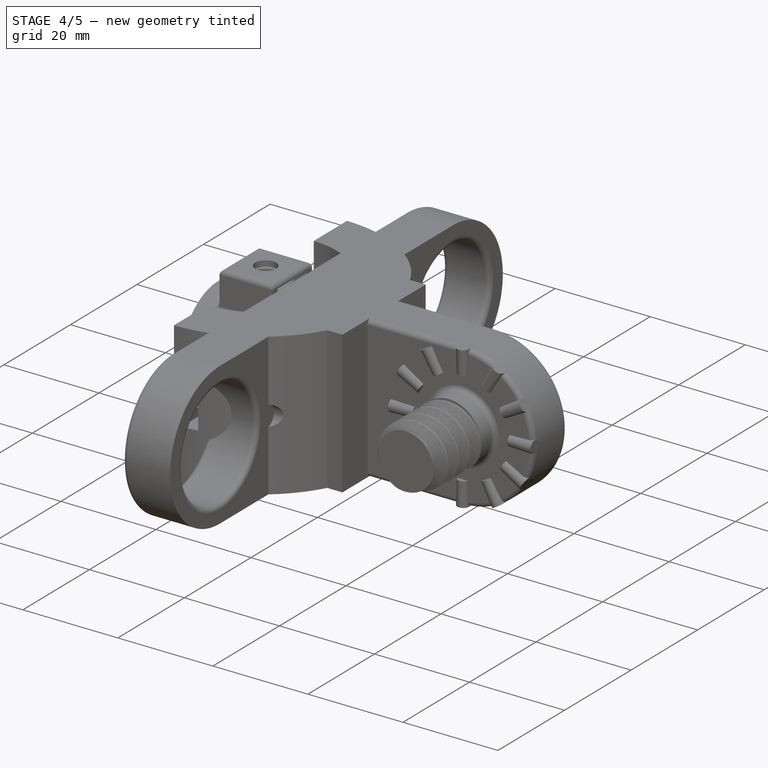
[diagram: stage 4 of 5 — iso view after this stage's code; geometry added in this stage tinted green]
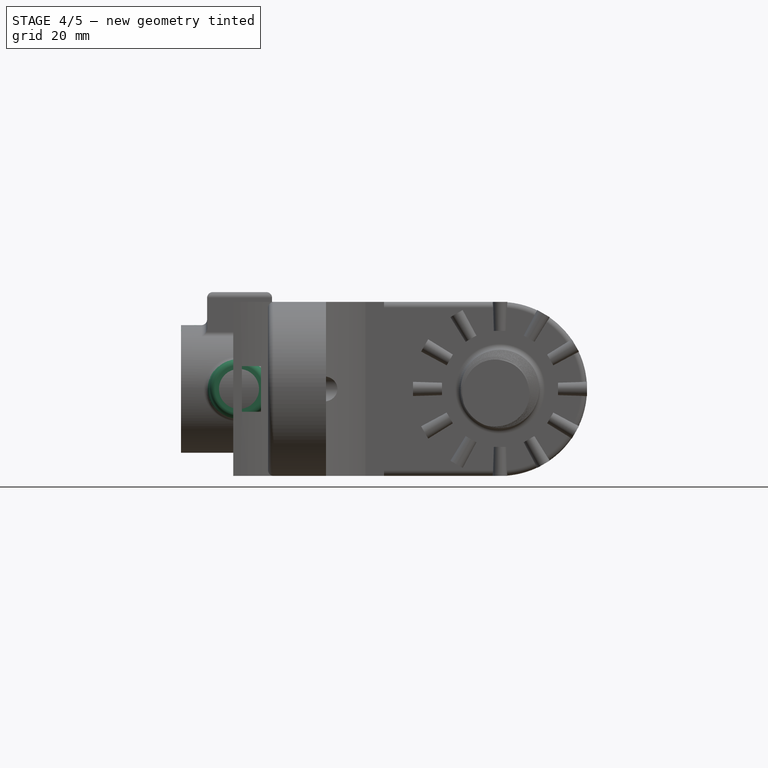
[diagram: stage 4 of 5 — front view after this stage's code; geometry added in this stage tinted green]
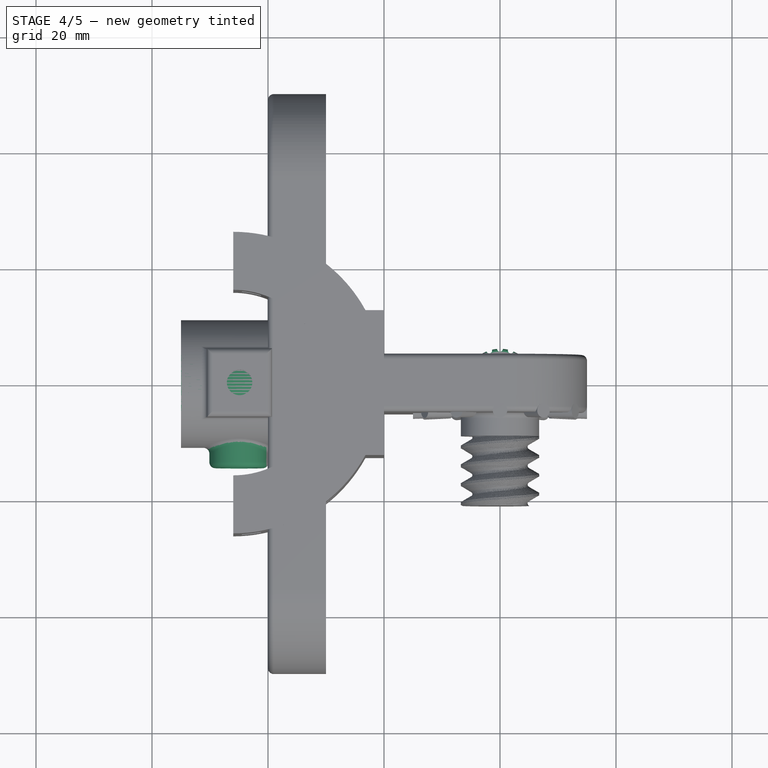
[diagram: stage 4 of 5 — top view after this stage's code; geometry added in this stage tinted green]
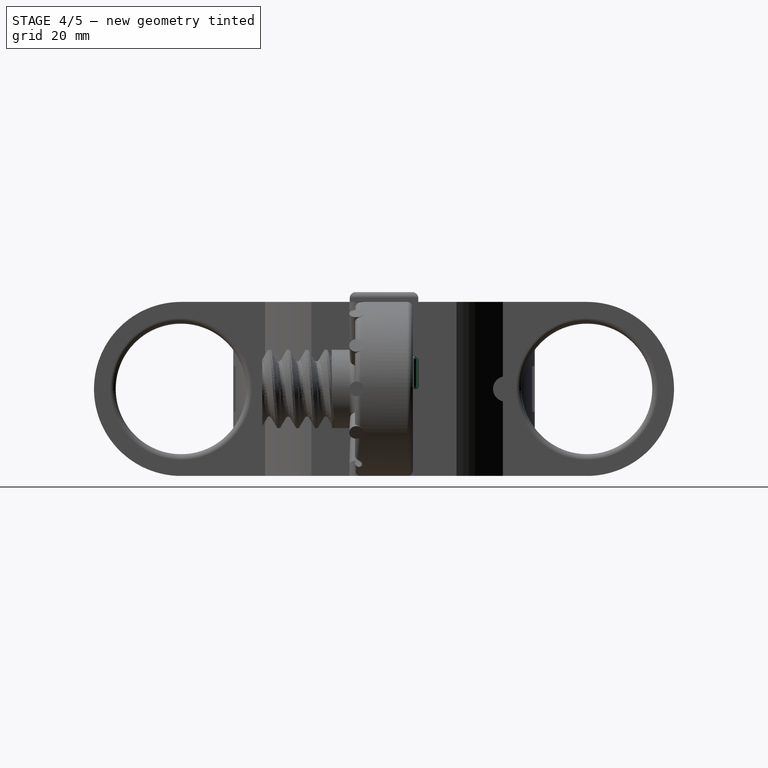
[diagram: stage 4 of 5 — right view after this stage's code; geometry added in this stage tinted green]
FEATURE [PartDesign::Body] Body004
  Group = -> [Sketch011,Pad007,Sketch012,Pad008,Sketch013,Pocket001,Sketch014,Hole002,Sketch015,Pocket002,Fillet002,Fillet003,Boolean,Sketch016,Pad009,Mirrored001]
  Origin = -> Origin006
  Tip = -> Mirrored001
FEATURE [App::Part] Part001  label="tripod_adapter"
  Group = -> [Body004]
  Origin = -> Origin004
  Placement = pos=(75,0,0) rot=(0,0,1;0rad)
FEATURE [Sketcher::SketchObject] Sketch017
  MapMode = 5
  Support = -> [XY_Plane009]
  expr: Constraints[0] = 6
  sketch-geometry (1):
    g0: Circle CenterX=0 CenterY=0 CenterZ=0 NormalX=0 NormalY=0 NormalZ=1 AngleXU=0 Radius=6
  constraints (2):
    c: Radius(g0) = 6
    c: Coincident(g0,g-1)
FEATURE [PartDesign::Pad] Pad010
  Length = 5.6
  Length2 = 100
  Profile = -> Sketch017
  Type = 0
FEATURE [Sketcher::SketchObject] Sketch018
  MapMode = 5
  Placement = pos=(0,0,5.6) rot=(0,0,1;0rad)
  Support = -> [Pad010]
  sketch-geometry (7):
    g0: LineSegment StartX=3.89711 StartY=-2.25 StartZ=0 EndX=3.89711 EndY=2.25 EndZ=0
    g1: LineSegment StartX=3.89711 StartY=2.25 StartZ=0 EndX=0 EndY=4.5 EndZ=0
    g2: LineSegment StartX=0 StartY=4.5 StartZ=0 EndX=-3.89711 EndY=2.25 EndZ=0
    g3: LineSegment StartX=-3.89711 StartY=2.25 StartZ=0 EndX=-3.89711 EndY=-2.25 EndZ=0
    g4: LineSegment StartX=-3.89711 StartY=-2.25 StartZ=0 EndX=2.879e-12 EndY=-4.5 EndZ=0
    g5: LineSegment StartX=2.879e-12 StartY=-4.5 StartZ=0 EndX=3.89711 EndY=-2.25 EndZ=0
    g6: Circle [constr] CenterX=0 CenterY=0 CenterZ=0 NormalX=0 NormalY=0 NormalZ=1 AngleXU=0 Radius=4.5
  constraints (16):
    c: Coincident(g0,g1)
    c: Coincident(g1,g2)
    c: Coincident(g2,g3)
    c: Coincident(g3,g4)
    c: Coincident(g4,g5)
    c: Coincident(g5,g0)
    c: Equal(g0, g1-g5) x5
    c: PointOnObject(g0,g6)
    c: PointOnObject(g1,g6)
    c: PointOnObject(g2,g6)
    c: PointOnObject(g3,g6)
    c: PointOnObject(g4,g6)
    c: PointOnObject(g5,g6)
    c: Coincident(g6,g-1)
    c: Diameter(g6) = 9
    c: PointOnObject(g1,g-2)
FEATURE [PartDesign::Fillet] Fillet004
  Base = -> Pad010 [Edge2,Edge3]
  BaseFeature = -> Pad010
  Radius = 0.5
FEATURE [PartDesign::Pocket] Pocket003
  BaseFeature = -> Fillet004
  Length = 4
  Length2 = 100
  Profile = -> Sketch018
  Type = 0
FEATURE [Sketcher::SketchObject] Sketch019
  MapMode = 5
  Support = -> [XY_Plane009]
  sketch-geometry (1):
    g0: Circle CenterX=6 CenterY=0 CenterZ=0 NormalX=0 NormalY=0 NormalZ=1 AngleXU=0 Radius=0.5
  constraints (3):
    c: PointOnObject(g0,g-1)
    c: Diameter(g0) = 1
    c: DistanceX(g-1,g0) = 6
FEATURE [PartDesign::Pocket] Pocket004
  BaseFeature = -> Pocket003
  Length = 5
  Length2 = 100
  Profile = -> Sketch019
  Reversed = true
  Type = 1
FEATURE [PartDesign::PolarPattern] PolarPattern002
  Angle = 360
  Axis = -> Sketch019 [N_Axis]
  BaseFeature = -> Pocket004
  Occurrences = 20
  Originals = -> [Pocket004]
FEATURE [Sketcher::SketchObject] Sketch045
  AttachmentOffset = pos=(0,0,-0.25) rot=(0,0,1;0rad)
  ExternalGeometry = -> [Pad024]
  MapMode = 5
  Placement = pos=(0,-4.75,-1e-15) rot=(1,0,0;1.5708rad)
  Support = -> [Pad024]
  expr: Constraints[6] = 2.2 / 2
  expr: Constraints[7] = 2.5 / 2
  sketch-geometry (4):
    g0: LineSegment StartX=10 StartY=1e-16 StartZ=0 EndX=10 EndY=-1.1 EndZ=0
    g1: LineSegment StartX=10 StartY=-1.1 StartZ=0 EndX=15 EndY=-1.25 EndZ=0
    g2: LineSegment StartX=15 StartY=-1.25 StartZ=0 EndX=15 EndY=0 EndZ=0
    g3: LineSegment StartX=15 StartY=0 StartZ=0 EndX=10 EndY=1e-16 EndZ=0
  constraints (12):
    c: Coincident(g0,g1)
    c: Coincident(g1,g2)
    c: Vertical(g2)
    c: Coincident(g2,g3)
    c: Coincident(g3,g0)
    c: Vertical(g0)
    c: DistanceY(g0,g0) = 1.1
    c: DistanceY(g2,g2) = 1.25
    c: DistanceX(g1,g1) = 5
    c: DistanceY(g0,g-1) = 1.1
    c: PointOnObject(g2,g-1)
    c: PointOnObject(g2,g-3)
FEATURE [PartDesign::Fillet] Fillet012
  Base = -> Pad024 [Edge4,Edge15,Edge3,Edge14]
  BaseFeature = -> Pad024
  Placement = pos=(0,0,0) rot=(1,0,0;1.5708rad)
  Radius = 1
FEATURE [PartDesign::Revolution] Revolution002
  Angle = 360
  Axis = (1,0,0)
  Base = (0,-4.75,-1.1e-15)
  BaseFeature = -> Fillet012
  Placement = pos=(0,0,0) rot=(1,0,0;1.5708rad)
  Profile = -> Sketch045
  ReferenceAxis = -> Sketch045 [H_Axis]
  Reversed = true
FEATURE [PartDesign::PolarPattern] PolarPattern005
  Angle = 360
  Axis = -> Sketch045 [N_Axis]
  BaseFeature = -> Revolution002
  Occurrences = 12
  Originals = -> [Revolution002]
  Placement = pos=(0,0,0) rot=(1,0,0;1.5708rad)
FEATURE [PartDesign::Body] Body008
  Group = -> [Sketch044,Pad024,Fillet012,Sketch045,Revolution002,PolarPattern005]
  Origin = -> Origin016
  Tip = -> PolarPattern005
FEATURE [Sketcher::SketchObject] Sketch046
  MapMode = 5
  Placement = pos=(-20,0,0) rot=(0.707107,0,-0.707107;3.14159rad)
  Support = -> [PolarPattern005]
  expr: Constraints[0] = (18 + 2 * 2) / 2
  sketch-geometry (1):
    g0: Circle CenterX=0 CenterY=0 CenterZ=0 NormalX=0 NormalY=0 NormalZ=1 AngleXU=0 Radius=11
  constraints (2):
    c: Radius(g0) = 11
    c: Coincident(g-1,g0)
FEATURE [PartDesign::Pad] Pad025
  Length = 35
  Length2 = 100
  Placement = pos=(0,0,0) rot=(1,0,0;1.5708rad)
  Profile = -> Sketch046
  Type = 0
FEATURE [Sketcher::SketchObject] Sketch047
  ExternalGeometry = -> [Pad025]
  MapMode = 5
  Placement = pos=(0,0,0) rot=(1,0,0;1.5708rad)
  Support = -> [XZ_Plane017]
  expr: Constraints[1] = 45
  expr: Constraints[2] = 3.5 + 1.6
  sketch-geometry (1):
    g0: Circle CenterX=-45 CenterY=0 CenterZ=0 NormalX=0 NormalY=0 NormalZ=1 AngleXU=0 Radius=5.1
  constraints (3):
    c: PointOnObject(g0,g-1)
    c: DistanceX(g0,g-1) = 45
    c: Radius(g0) = 5.1
FEATURE [PartDesign::Pad] Pad026
  BaseFeature = -> Pad025
  Length = 14.5
  Length2 = 100
  Placement = pos=(0,0,0) rot=(1,0,0;1.5708rad)
  Profile = -> Sketch047
  Type = 0
  expr: Length = 14.5
FEATURE [Sketcher::SketchObject] Sketch049
  ExternalGeometry = -> [Pad026]
  MapMode = 5
  Placement = pos=(0,-14.5,-3.2e-15) rot=(1,0,0;1.5708rad)
  Support = -> [Pad026]
  sketch-geometry (1):
    g0: Circle CenterX=-45 CenterY=0 CenterZ=0 NormalX=0 NormalY=0 NormalZ=1 AngleXU=0 Radius=3.45
  constraints (2):
    c: Radius(g0) = 3.45
    c: Coincident(g0,g-3)
FEATURE [Sketcher::SketchObject] Sketch050
  MapMode = 5
  Placement = pos=(-55,0,-1.21e-14) rot=(0.707107,0,-0.707107;3.14159rad)
  Support = -> [Pad025]
  expr: Constraints[0] = 16.75 / 2
  sketch-geometry (1):
    g0: Circle CenterX=0 CenterY=0 CenterZ=0 NormalX=0 NormalY=0 NormalZ=1 AngleXU=0 Radius=8.375
  constraints (2):
    c: Radius(g0) = 8.375
    c: Coincident(g-1,g0)
FEATURE [PartDesign::Pocket] Pocket011
  BaseFeature = -> Pad026
  Length = 20
  Length2 = 100
  Placement = pos=(0,0,0) rot=(1,0,0;1.5708rad)
  Profile = -> Sketch050
  Type = 0
FEATURE [PartDesign::Boolean] Boolean001
  BaseFeature = -> Pocket011
  Group = -> [Body008]
  Type = 0
FEATURE [Sketcher::SketchObject] Sketch051
  ExternalGeometry = -> [Boolean001]
  MapMode = 5
  Placement = pos=(0,0,0) rot=(1,0,0;1.5708rad)
  Support = -> [XZ_Plane017]
  sketch-geometry (3):
    g0: LineSegment StartX=-20 StartY=10 StartZ=0 EndX=-27 EndY=10 EndZ=0
    g1: ArcOfCircle CenterX=-30.9641 CenterY=25.0622 CenterZ=0 NormalX=0 NormalY=0 NormalZ=1 AngleXU=0 Radius=15.5751 StartAngle=4.96974 EndAngle=5.49333
    g2: LineSegment StartX=-20 StartY=14 StartZ=0 EndX=-20 EndY=10 EndZ=0
  constraints (9):
    c: Horizontal(g0)
    c: Coincident(g1,g0)
    c: Coincident(g2,g1)
    c: Coincident(g2,g0)
    c: Vertical(g2)
    c: DistanceY(g2,g2) = 4
    c: Angle(g1) = 0.523599
    c: Coincident(g1,g-3)
    c: DistanceX(g0,g0) = 7
FEATURE [PartDesign::Pad] Pad027
  BaseFeature = -> Boolean001
  Length = 10
  Length2 = 100
  Midplane = true
  Profile = -> Sketch051
  Type = 0
FEATURE [PartDesign::Mirrored] Mirrored004
  BaseFeature = -> Pad027
  MirrorPlane = -> Sketch051 [H_Axis]
  Originals = -> [Pad027]
FEATURE [PartDesign::Body] Body007
  Group = -> [Sketch035,Pad019,Fillet010,Sketch036,Groove001,PolarPattern004,Sketch037,Pad020,Fillet011,Sketch038,Pad021,Sketch039,Pad022,Sketch041,Sketch042,Pocket008,Sketch043,Pad023,Mirrored003,Pocket009,Fillet015]
  Origin = -> Origin013
  Tip = -> Fillet015
FEATURE [PartDesign::Pocket] Pocket012
  BaseFeature = -> Mirrored004
  Length = 7
  Length2 = 100
  Profile = -> Sketch049
  Type = 0
FEATURE [PartDesign::Fillet] Fillet016
  Base = -> Pocket012 [Edge205,Edge209]
  BaseFeature = -> Pocket012
  Radius = 1
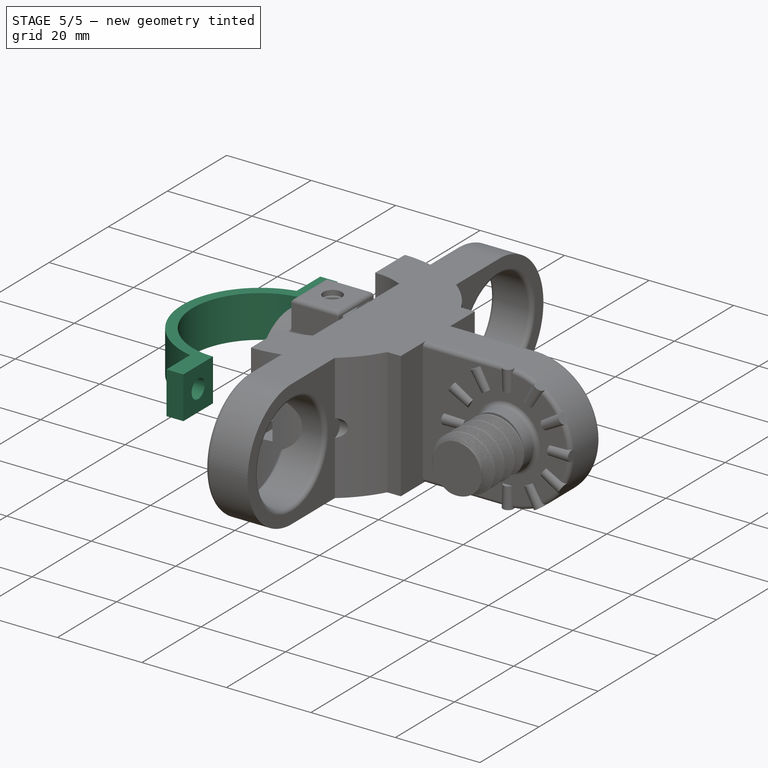
[diagram: stage 5 of 5 — iso view after this stage's code; geometry added in this stage tinted green]
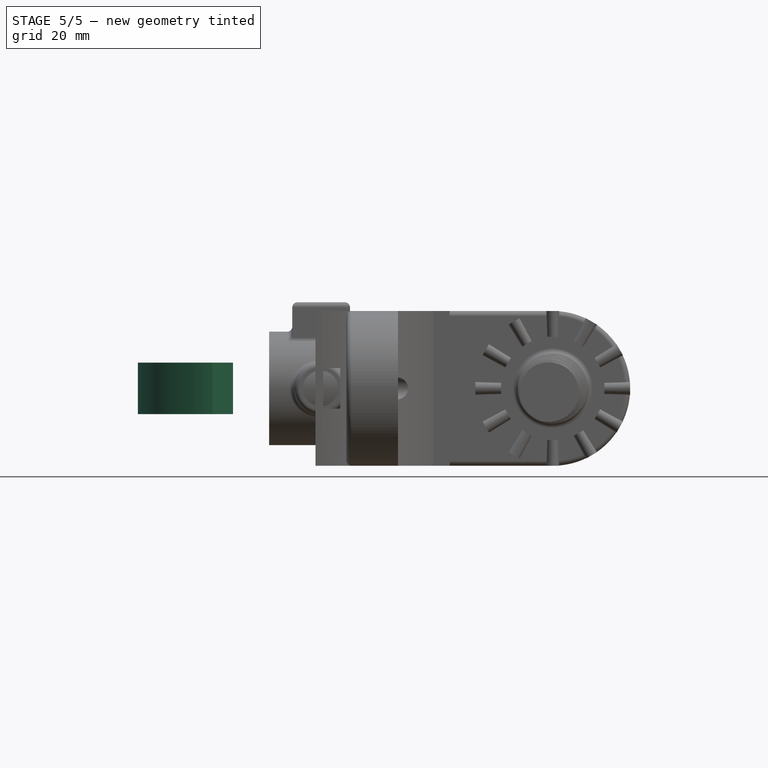
[diagram: stage 5 of 5 — front view after this stage's code; geometry added in this stage tinted green]
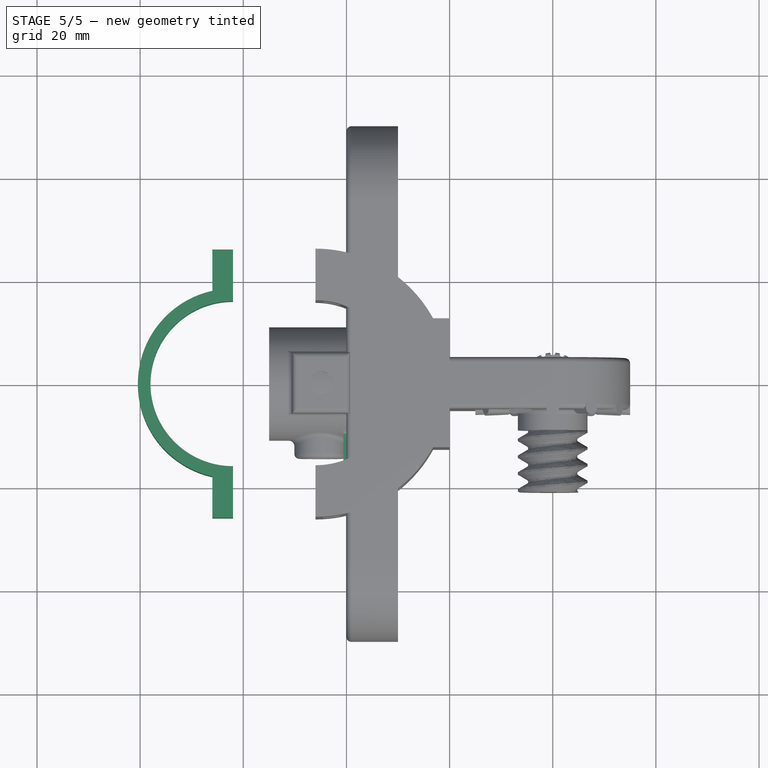
[diagram: stage 5 of 5 — top view after this stage's code; geometry added in this stage tinted green]
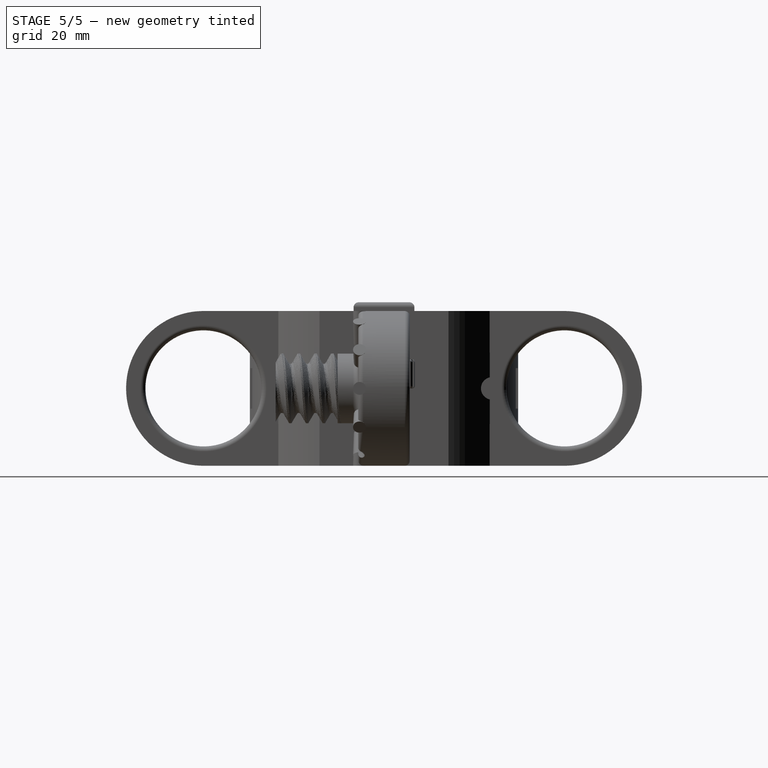
[diagram: stage 5 of 5 — right view after this stage's code; geometry added in this stage tinted green]
FEATURE [PartDesign::Body] Body001
  Group = -> [Sketch003,Pad002,Sketch004,Hole,Sketch005,Pocket,Mirrored]
  Origin = -> Origin001
  Tip = -> Mirrored
FEATURE [Sketcher::SketchObject] Sketch006
  AttachmentOffset = pos=(-108,0,-5e-16) rot=(0,1,0;3.14159rad)
  MapMode = 5
  Placement = pos=(-108,0,0) rot=(0,1,0;3.14159rad)
  expr: Constraints[2] = 32 / 2 + 20 + 10
  sketch-geometry (8):
    g0: ArcOfCircle CenterX=-46 CenterY=0 CenterZ=0 NormalX=0 NormalY=0 NormalZ=1 AngleXU=0 Radius=16 StartAngle=4.71239 EndAngle=7.85398
    g1: LineSegment StartX=-46 StartY=26 StartZ=0 EndX=-46 EndY=16 EndZ=0
    g2: LineSegment StartX=-46 StartY=-16 StartZ=0 EndX=-46 EndY=-26 EndZ=0
    g3: LineSegment StartX=-46 StartY=26 StartZ=0 EndX=-42 EndY=26 EndZ=0
    g4: LineSegment StartX=-42 StartY=26 StartZ=0 EndX=-42 EndY=18 EndZ=0
    g5: LineSegment StartX=-46 StartY=-26 StartZ=0 EndX=-42 EndY=-26 EndZ=0
    g6: LineSegment StartX=-42 StartY=-26 StartZ=0 EndX=-42 EndY=-18 EndZ=0
    g7: ArcOfCircle CenterX=-46 CenterY=0 CenterZ=0 NormalX=0 NormalY=0 NormalZ=1 AngleXU=0 Radius=18.4391 StartAngle=4.93106 EndAngle=7.63531
  constraints (25):
    c: PointOnObject(g0,g-1)
    c: Diameter(g0) = 32
    c: DistanceX(g0,g-1) = 46
    c: Coincident(g1,g0)
    c: Coincident(g2,g0)
    c: Vertical(g2)
    c: Vertical(g0,g0)
    c: Vertical(g1,g0)
    c: Vertical(g4)
    c: Perpendicular(g4,g3)
    c: DistanceX(g3,g3) = 4
    c: Coincident(g4,g3)
    c: DistanceY(g4,g4) = 8
    c: Coincident(g1,g3)
    c: Coincident(g5,g2)
    c: Horizontal(g5)
    c: Coincident(g6,g5)
    c: Vertical(g6)
    c: Equal(g5,g3)
    c: Equal(g4,g6)
    c: Coincident(g7,g0)
    c: Coincident(g7,g4)
    c: Coincident(g7,g6)
    c: Equal(g1,g2)
    c: DistanceY(g1,g1) = 10
FEATURE [PartDesign::Pad] Pad004
  Length = 10
  Length2 = 100
  Midplane = true
  Placement = pos=(-108,0,0) rot=(0,1,0;3.14159rad)
  Profile = -> Sketch006
  Type = 0
FEATURE [Sketcher::SketchObject] Sketch007
  MapMode = 5
  Placement = pos=(-62,0,0) rot=(0.57735,-0.57735,0.57735;4.18879rad)
  Support = -> [Pad004]
  sketch-geometry (2):
    g0: Circle CenterX=-21 CenterY=0 CenterZ=0 NormalX=0 NormalY=0 NormalZ=1 AngleXU=0 Radius=2
    g1: Circle CenterX=21 CenterY=0 CenterZ=0 NormalX=0 NormalY=0 NormalZ=1 AngleXU=0 Radius=2
  constraints (5):
    c: PointOnObject(g1,g-1)
    c: Symmetric(g0,g1,g-1)
    c: DistanceX(g0,g-1) = 21
    c: Equal(g0,g1)
    c: Radius(g0) = 2
FEATURE [PartDesign::Hole] Hole001
  BaseFeature = -> Pad004
  Depth = 25
  DepthType = 0
  Diameter = 4.4
  DrillPoint = 1
  DrillPointAngle = 118
  HoleCutCountersinkAngle = 90
  HoleCutDepth = 0
  HoleCutDiameter = 4
  HoleCutType = 0
  ModelActualThread = false
  Placement = pos=(-108,0,0) rot=(0,1,0;3.14159rad)
  Profile = -> Sketch007
  Tapered = false
  TaperedAngle = 90
  ThreadAngle = 0
  ThreadClass = 0
  ThreadCutOffInner = 0
  ThreadCutOffOuter = 0
  ThreadDirection = 0
  ThreadFit = 0
  ThreadPitch = 0
  ThreadSize = 11
  ThreadType = 2
  Threaded = false
FEATURE [PartDesign::Body] Body002  label="pinza2"
  Group = -> [Sketch006,Pad004,Sketch007,Hole001]
  Origin = -> Origin002
  Tip = -> Hole001
FEATURE [Sketcher::SketchObject] Sketch008
  MapMode = 5
  Placement = pos=(0,0,0) rot=(1,0,0;1.5708rad)
  sketch-geometry (5):
    g0: ArcOfCircle CenterX=0 CenterY=0 CenterZ=0 NormalX=0 NormalY=0 NormalZ=1 AngleXU=0 Radius=15 StartAngle=4.71239 EndAngle=7.85398
    g1: LineSegment StartX=4.6e-15 StartY=15 StartZ=0 EndX=-20 EndY=15 EndZ=0
    g2: LineSegment StartX=-20 StartY=15 StartZ=0 EndX=-20 EndY=-15 EndZ=0
    g3: LineSegment StartX=-20 StartY=-15 StartZ=0 EndX=-5.2016e-05 EndY=-15 EndZ=0
    g4: Circle CenterX=0 CenterY=0 CenterZ=0 NormalX=0 NormalY=0 NormalZ=1 AngleXU=0 Radius=7.5
  constraints (14):
    c: Radius(g0) = 15
    c: Coincident(g1,g2)
    c: Coincident(g2,g3)
    c: Horizontal(g1)
    c: Horizontal(g3)
    c: Vertical(g2)
    c: Coincident(g0,g3)
    c: Coincident(g0,g1)
    c: DistanceX(g1,g1) = 20
    c: PointOnObject(g0,g-2)
    c: Coincident(g-1,g0)
    c: DistanceY(g2,g2) = 30
    c: Coincident(g4,g0)
    c: Radius(g4) = 7.5
FEATURE [PartDesign::Pad] Pad005
  Length = 10
  Length2 = 100
  Midplane = true
  Placement = pos=(0,0,0) rot=(1,0,0;1.5708rad)
  Profile = -> Sketch008
  Type = 0
FEATURE [Sketcher::SketchObject] Sketch009
  AttachmentOffset = pos=(0,0,-0.25) rot=(0,0,1;0rad)
  ExternalGeometry = -> [Pad005]
  MapMode = 5
  Placement = pos=(0,-4.75,0) rot=(1,0,0;1.5708rad)
  Support = -> [Pad005]
  expr: Constraints[7] = 2.5 / 2
  expr: Constraints[6] = 2.2 / 2
  sketch-geometry (4):
    g0: LineSegment StartX=10 StartY=1e-16 StartZ=0 EndX=10 EndY=-1.1 EndZ=0
    g1: LineSegment StartX=10 StartY=-1.1 StartZ=0 EndX=15 EndY=-1.25 EndZ=0
    g2: LineSegment StartX=15 StartY=-1.25 StartZ=0 EndX=15 EndY=0 EndZ=0
    g3: LineSegment StartX=15 StartY=0 StartZ=0 EndX=10 EndY=1e-16 EndZ=0
  constraints (12):
    c: Coincident(g0,g1)
    c: Coincident(g1,g2)
    c: Vertical(g2)
    c: Coincident(g2,g3)
    c: Coincident(g3,g0)
    c: Vertical(g0)
    c: DistanceY(g0,g0) = 1.1
    c: DistanceY(g2,g2) = 1.25
    c: DistanceX(g1,g1) = 5
    c: DistanceY(g0,g-1) = 1.1
    c: PointOnObject(g2,g-1)
    c: PointOnObject(g2,g-3)
FEATURE [PartDesign::Fillet] Fillet001
  Base = -> Pad005 [Edge4,Edge15,Edge3,Edge14]
  BaseFeature = -> Pad005
  Placement = pos=(0,0,0) rot=(1,0,0;1.5708rad)
  Radius = 1
FEATURE [PartDesign::Revolution] Revolution001
  Angle = 360
  Axis = (1,0,0)
  Base = (0,-4.75,-1.1e-15)
  BaseFeature = -> Fillet001
  Placement = pos=(0,0,0) rot=(1,0,0;1.5708rad)
  Profile = -> Sketch009
  ReferenceAxis = -> Sketch009 [H_Axis]
  Reversed = true
FEATURE [PartDesign::PolarPattern] PolarPattern001
  Angle = 360
  Axis = -> Sketch009 [N_Axis]
  BaseFeature = -> Revolution001
  Occurrences = 12
  Originals = -> [Revolution001]
  Placement = pos=(0,0,0) rot=(1,0,0;1.5708rad)
FEATURE [PartDesign::Body] Body003
  Group = -> [Sketch008,Pad005,Fillet001,Sketch009,Revolution001,PolarPattern001]
  Origin = -> Origin005
  Tip = -> PolarPattern001
FEATURE [Sketcher::SketchObject] Sketch011
  MapMode = 5
  Placement = pos=(-20,0,0) rot=(0.707107,0,-0.707107;3.14159rad)
  Support = -> [PolarPattern001]
  expr: Constraints[0] = (18 + 2 * 2) / 2
  sketch-geometry (1):
    g0: Circle CenterX=0 CenterY=0 CenterZ=0 NormalX=0 NormalY=0 NormalZ=1 AngleXU=0 Radius=11
  constraints (2):
    c: Radius(g0) = 11
    c: Coincident(g-1,g0)
FEATURE [PartDesign::Pad] Pad007
  Length = 25
  Length2 = 100
  Placement = pos=(0,0,0) rot=(1,0,0;1.5708rad)
  Profile = -> Sketch011
  Type = 0
FEATURE [Sketcher::SketchObject] Sketch012
  ExternalGeometry = -> [Pad007]
  MapMode = 5
  Placement = pos=(0,0,0) rot=(1,0,0;1.5708rad)
  Support = -> [XZ_Plane006]
  expr: Constraints[10] = 10 - 11.2 / 2
  expr: Constraints[7] = 8.800000000000001 + 1.2 * 2
  expr: Constraints[8] = 8.800000000000001 + 1.2 * 2
  sketch-geometry (4):
    g0: LineSegment StartX=-40.6 StartY=5.6 StartZ=0 EndX=-29.4 EndY=5.6 EndZ=0
    g1: LineSegment StartX=-29.4 StartY=5.6 StartZ=0 EndX=-29.4 EndY=-5.6 EndZ=0
    g2: LineSegment StartX=-29.4 StartY=-5.6 StartZ=0 EndX=-40.6 EndY=-5.6 EndZ=0
    g3: LineSegment StartX=-40.6 StartY=-5.6 StartZ=0 EndX=-40.6 EndY=5.6 EndZ=0
  constraints (11):
    c: Coincident(g0,g1)
    c: Coincident(g1,g2)
    c: Coincident(g2,g3)
    c: Coincident(g3,g0)
    c: Horizontal(g0)
    c: Vertical(g3)
    c: Equal(g3,g1)
    c: DistanceY(g1,g1) = 11.2
    c: DistanceX(g2,g2) = 11.2
    c: Symmetric(g1,g0,g-1)
    c: DistanceX(g-4,g2) = 4.4
FEATURE [PartDesign::Pad] Pad008
  BaseFeature = -> Pad007
  Length = 16.7
  Length2 = 100
  Placement = pos=(0,0,0) rot=(1,0,0;1.5708rad)
  Profile = -> Sketch012
  Type = 0
  expr: Length = 18 / 2 + 2 + 4.5 + 1.2
FEATURE [Sketcher::SketchObject] Sketch013
  ExternalGeometry = -> [Pad008]
  MapMode = 5
  Placement = pos=(-29.4,0,0) rot=(0.707107,0,0.707107;3.14159rad)
  Support = -> [Pad008]
  sketch-geometry (4):
    g0: LineSegment StartX=-4.5 StartY=15.5 StartZ=0 EndX=4.5 EndY=15.5 EndZ=0
    g1: LineSegment StartX=4.5 StartY=15.5 StartZ=0 EndX=4.5 EndY=11 EndZ=0
    g2: LineSegment StartX=4.5 StartY=11 StartZ=0 EndX=-4.5 EndY=11 EndZ=0
    g3: LineSegment StartX=-4.5 StartY=11 StartZ=0 EndX=-4.5 EndY=15.5 EndZ=0
  constraints (11):
    c: Coincident(g0,g1)
    c: Coincident(g1,g2)
    c: Coincident(g2,g3)
    c: Coincident(g3,g0)
    c: Horizontal(g2)
    c: Vertical(g1)
    c: Vertical(g3)
    c: DistanceY(g1,g1) = 4.5
    c: DistanceX(g2,g2) = 9
    c: Symmetric(g0,g0,g-2)
    c: DistanceY(g0,g-3) = 1.2
FEATURE [PartDesign::Pocket] Pocket001
  BaseFeature = -> Pad008
  Length = 9
  Length2 = 100
  Placement = pos=(0,0,0) rot=(1,0,0;1.5708rad)
  Profile = -> Sketch013
  Type = 0
FEATURE [Sketcher::SketchObject] Sketch014
  ExternalGeometry = -> [Pocket001]
  MapMode = 5
  Placement = pos=(0,-16.7,0) rot=(1,0,0;1.5708rad)
  Support = -> [Pocket001]
  sketch-geometry (1):
    g0: Circle CenterX=-35 CenterY=0 CenterZ=0 NormalX=0 NormalY=0 NormalZ=1 AngleXU=0 Radius=2.91
  constraints (2):
    c: Radius(g0) = 2.91
    c: Symmetric(g-3,g-4,g0)
FEATURE [PartDesign::Hole] Hole002
  BaseFeature = -> Pocket001
  Depth = 25
  DepthType = 0
  Diameter = 5.5
  DrillPoint = 1
  DrillPointAngle = 118
  HoleCutCountersinkAngle = 90
  HoleCutDepth = 0
  HoleCutDiameter = 5
  HoleCutType = 0
  ModelActualThread = false
  Placement = pos=(0,0,0) rot=(1,0,0;1.5708rad)
  Profile = -> Sketch014
  Tapered = false
  TaperedAngle = 90
  ThreadAngle = 0
  ThreadClass = 0
  ThreadCutOffInner = 0
  ThreadCutOffOuter = 0
  ThreadDirection = 0
  ThreadFit = 0
  ThreadPitch = 0
  ThreadSize = 13
  ThreadType = 2
  Threaded = false
FEATURE [Sketcher::SketchObject] Sketch015
  MapMode = 5
  Placement = pos=(-45,0,-9.9e-15) rot=(0.707107,0,-0.707107;3.14159rad)
  Support = -> [Pad007]
  expr: Constraints[0] = 16.75 / 2
  sketch-geometry (1):
    g0: Circle CenterX=0 CenterY=0 CenterZ=0 NormalX=0 NormalY=0 NormalZ=1 AngleXU=0 Radius=8.375
  constraints (2):
    c: Radius(g0) = 8.375
    c: Coincident(g-1,g0)
FEATURE [PartDesign::Pocket] Pocket002
  BaseFeature = -> Hole002
  Length = 20
  Length2 = 100
  Placement = pos=(0,0,0) rot=(1,0,0;1.5708rad)
  Profile = -> Sketch015
  Type = 0
FEATURE [PartDesign::Fillet] Fillet002
  Base = -> Pocket002 [Edge163,Edge166]
  BaseFeature = -> Pocket002
  Placement = pos=(0,0,0) rot=(1,0,0;1.5708rad)
  Radius = 2
FEATURE [PartDesign::Fillet] Fillet003
  Base = -> Fillet002 [Edge47,Edge19,Edge48,Edge26]
  BaseFeature = -> Fillet002
  Placement = pos=(0,0,0) rot=(1,0,0;1.5708rad)
  Radius = 0.5
FEATURE [PartDesign::Boolean] Boolean
  BaseFeature = -> Fillet003
  Group = -> [Body003]
  Type = 0
FEATURE [Sketcher::SketchObject] Sketch016
  ExternalGeometry = -> [Boolean]
  MapMode = 5
  Placement = pos=(0,0,0) rot=(1,0,0;1.5708rad)
  Support = -> [XZ_Plane006]
  sketch-geometry (3):
    g0: LineSegment StartX=-20 StartY=10 StartZ=0 EndX=-27 EndY=10 EndZ=0
    g1: ArcOfCircle CenterX=-30.9641 CenterY=25.0622 CenterZ=0 NormalX=0 NormalY=0 NormalZ=1 AngleXU=0 Radius=15.5751 StartAngle=4.96974 EndAngle=5.49333
    g2: LineSegment StartX=-20 StartY=14 StartZ=0 EndX=-20 EndY=10 EndZ=0
  constraints (9):
    c: Horizontal(g0)
    c: Coincident(g1,g0)
    c: DistanceX(g0,g0) = 7
    c: Coincident(g2,g1)
    c: Coincident(g2,g0)
    c: Vertical(g2)
    c: Coincident(g1,g-3)
    c: DistanceY(g2,g2) = 4
    c: Angle(g1) = 0.523599
FEATURE [PartDesign::Pad] Pad009
  BaseFeature = -> Boolean
  Length = 10
  Length2 = 100
  Midplane = true
  Profile = -> Sketch016
  Type = 0
FEATURE [PartDesign::Mirrored] Mirrored001
  BaseFeature = -> Pad009
  MirrorPlane = -> Sketch016 [H_Axis]
  Originals = -> [Pad009]
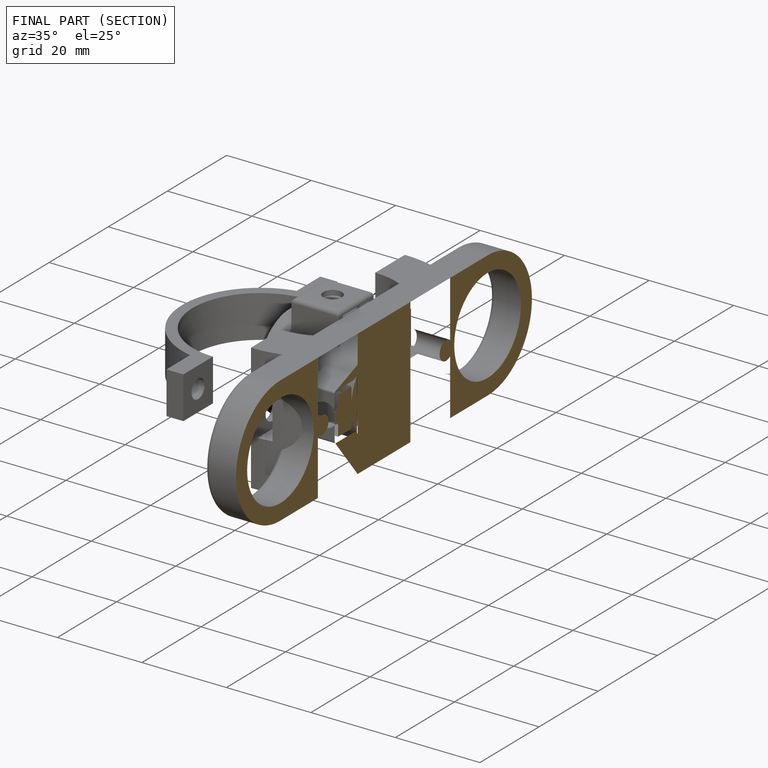
[diagram: finished part — half-section view (interior)]
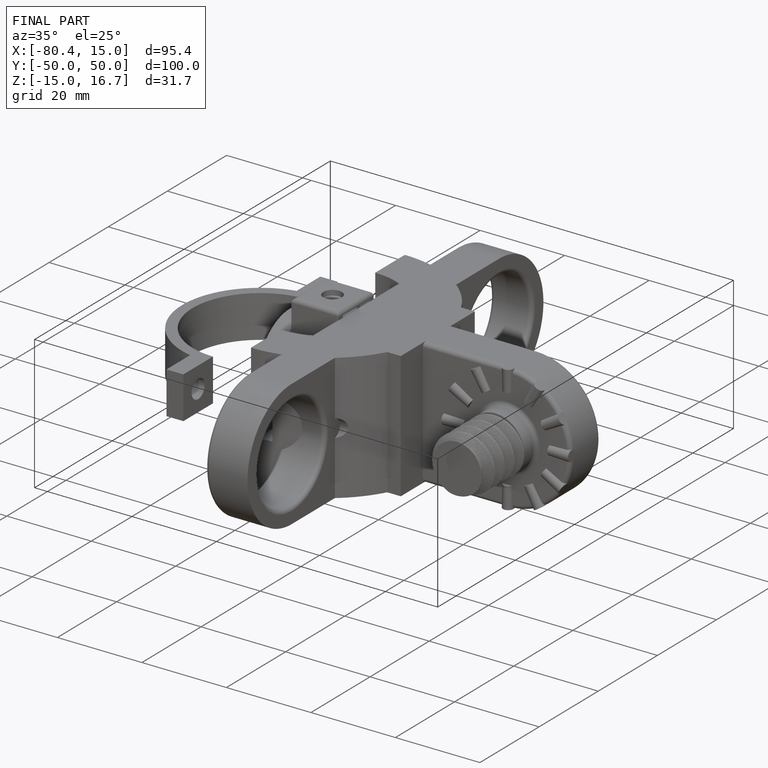
[diagram: finished part — iso view with bounding-box wireframe]
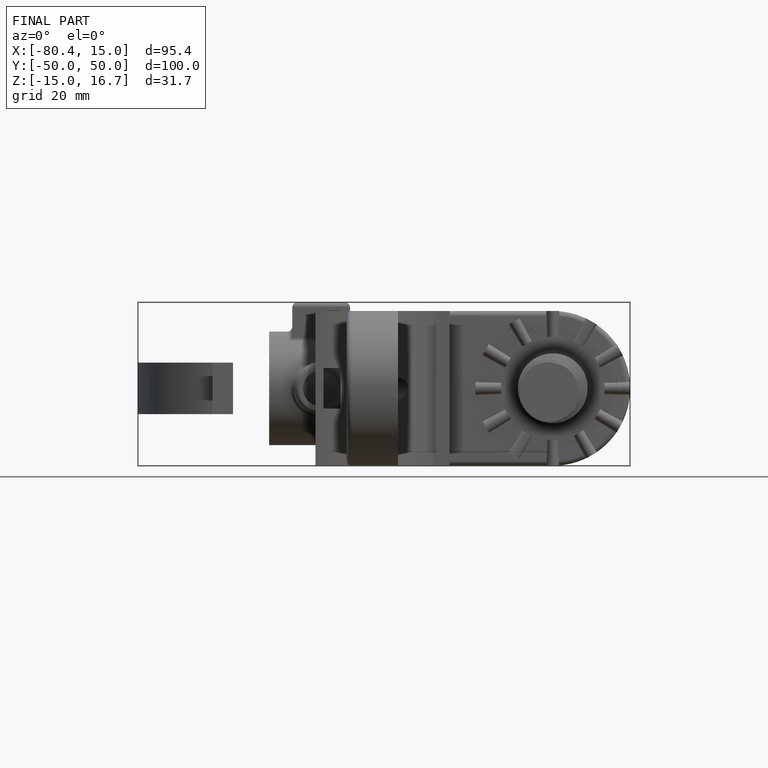
[diagram: finished part — front view with bounding-box wireframe]
